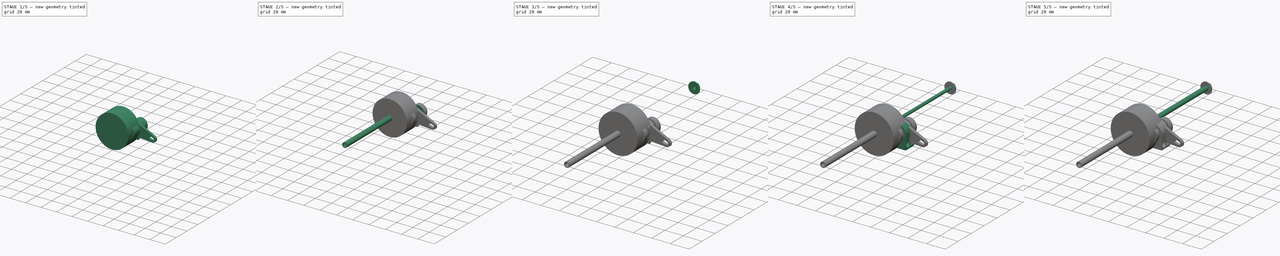
[diagram: build sequence overview — one tinted view per stage of 5, left to right]
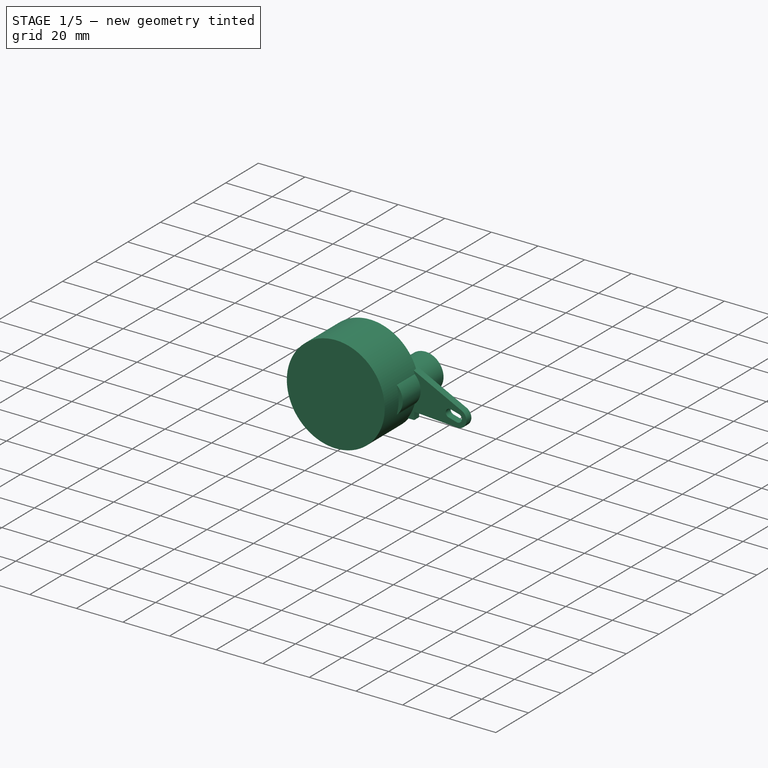
[diagram: stage 1 of 5 — iso view after this stage's code; geometry added in this stage tinted green]
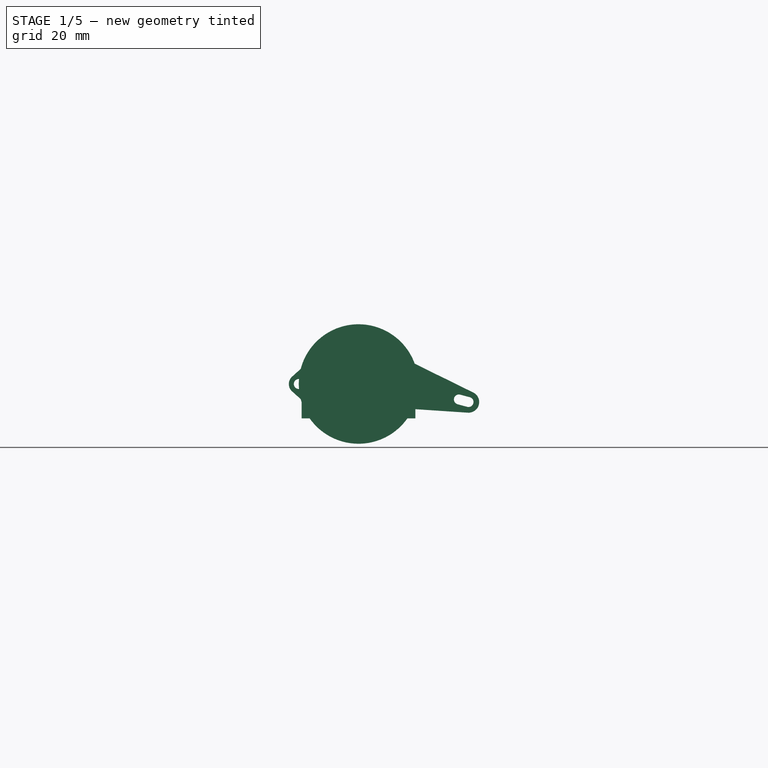
[diagram: stage 1 of 5 — front view after this stage's code; geometry added in this stage tinted green]
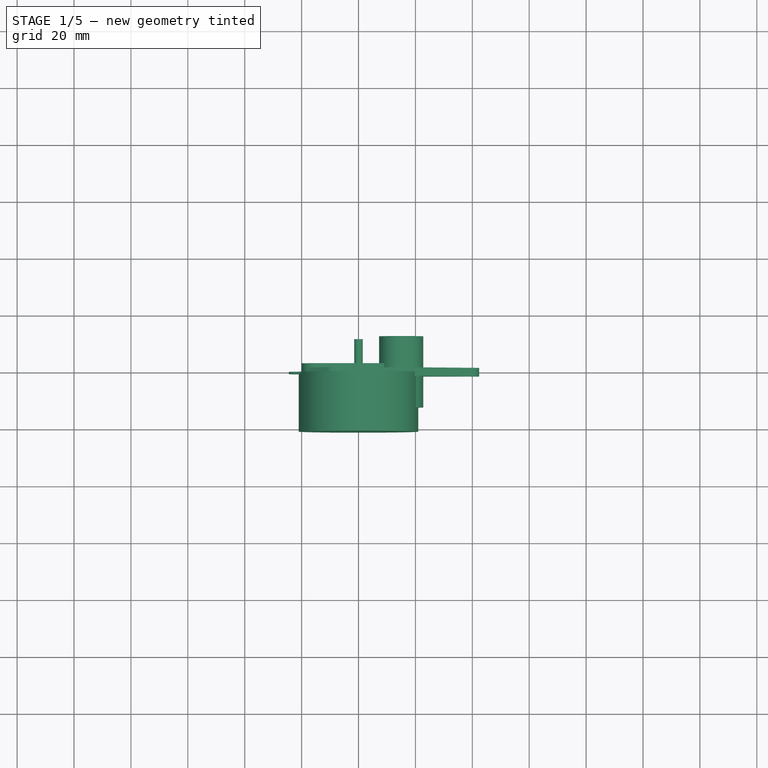
[diagram: stage 1 of 5 — top view after this stage's code; geometry added in this stage tinted green]
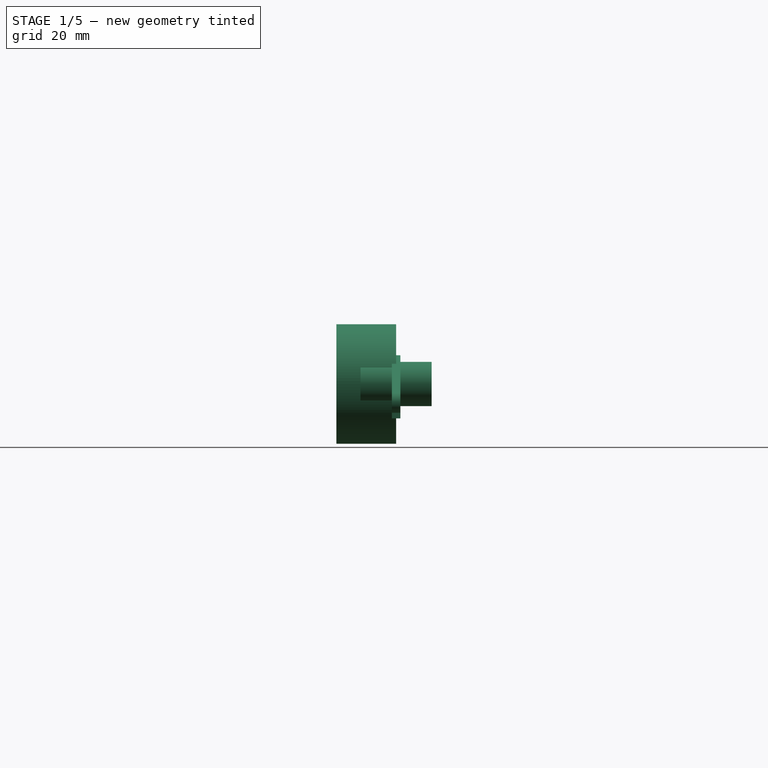
[diagram: stage 1 of 5 — right view after this stage's code; geometry added in this stage tinted green]
FCSTD DOCUMENT  (FreeCAD 0.19R23546 (Git))
Label: EL-axis v2
License: All rights reserved
LicenseURL: http://en.wikipedia.org/wiki/All_rights_reserved
objects: Sketcher::SketchObject×22, PartDesign::Body×22, PartDesign::FeatureBase×13, PartDesign::Pad×10, PartDesign::Pocket×8, App::Part×7, Part::FeaturePython×5, PartDesign::Revolution×3, PartDesign::Mirrored×1, PartDesign::Fillet×1, Part::Part2DObjectPython×1
note: 108 computed .brp shape members not serialized (recipe doc carries the construction recipe); baked Part::Feature solids carry a one-line shape summary decoded from their .brp

FEATURE [PartDesign::Body] Body021
  BaseFeature = -> Nut
  Group = -> [Clone016]
  Origin = -> Origin028
  Placement = pos=(15,61.25,0) rot=(0,0,1;0rad)
  Tip = -> Clone016
FEATURE [Sketcher::SketchObject] Sketch012
  MapMode = 5
  Placement = pos=(0,0,0) rot=(1,0,0;1.5708rad)
  Support = -> [XZ_Plane029]
  expr: Constraints[15] = <<params>>.Constraints.entraxe
  sketch-geometry (27):
    g0: Circle CenterX=-15 CenterY=-2e-16 CenterZ=0 NormalX=0 NormalY=0 NormalZ=1 AngleXU=0 Radius=3.05
    g1: ArcOfCircle CenterX=0 CenterY=0 CenterZ=0 NormalX=0 NormalY=0 NormalZ=1 AngleXU=0 Radius=3 StartAngle=3.22502 EndAngle=6.19976
    g2: Circle CenterX=15 CenterY=2e-16 CenterZ=0 NormalX=0 NormalY=0 NormalZ=1 AngleXU=0 Radius=7.7735
    g3: ArcOfCircle CenterX=-15 CenterY=-2e-16 CenterZ=0 NormalX=0 NormalY=0 NormalZ=1 AngleXU=0 Radius=5 StartAngle=1.5708 EndAngle=4.71239
    g4: ArcOfCircle CenterX=15 CenterY=2e-16 CenterZ=0 NormalX=0 NormalY=0 NormalZ=1 AngleXU=0 Radius=7.7735 StartAngle=3.84028 EndAngle=8.72609
    g5: LineSegment StartX=-15 StartY=5 StartZ=0 EndX=9.04791 EndY=5 EndZ=0
    g6: LineSegment StartX=-15 StartY=-5 StartZ=0 EndX=9.04791 EndY=-5 EndZ=0
    g7: LineSegment StartX=17.8868 StartY=-5 StartZ=0 EndX=20.7735 EndY=0 EndZ=0
    g8: LineSegment StartX=20.7735 StartY=0 StartZ=0 EndX=17.8868 EndY=5 EndZ=0
    g9: LineSegment StartX=17.8868 StartY=5 StartZ=0 EndX=12.1132 EndY=5 EndZ=0
    g10: LineSegment StartX=12.1132 StartY=5 StartZ=0 EndX=9.2265 EndY=0 EndZ=0
    g11: LineSegment StartX=9.2265 StartY=0 StartZ=0 EndX=12.1132 EndY=-5 EndZ=0
    g12: LineSegment StartX=12.1132 StartY=-5 StartZ=0 EndX=17.8868 EndY=-5 EndZ=0
    g13: Circle CenterX=15 CenterY=2e-16 CenterZ=0 NormalX=0 NormalY=0 NormalZ=1 AngleXU=0 Radius=5.7735
    g14: LineSegment StartX=15 StartY=5.7735 StartZ=0 EndX=15 EndY=7.7735 EndZ=0
    g15: ArcOfCircle CenterX=-16.5 CenterY=-2e-16 CenterZ=0 NormalX=0 NormalY=0 NormalZ=1 AngleXU=0 Radius=3.05 StartAngle=1.5708 EndAngle=4.71239
    g16: ArcOfCircle CenterX=-13.5 CenterY=-2e-16 CenterZ=0 NormalX=0 NormalY=0 NormalZ=1 AngleXU=0 Radius=3.05 StartAngle=4.71239 EndAngle=7.85398
    g17: LineSegment StartX=-16.5 StartY=-3.05 StartZ=0 EndX=-13.5 EndY=-3.05 EndZ=0
    g18: LineSegment StartX=-16.5 StartY=3.05 StartZ=0 EndX=-13.5 EndY=3.05 EndZ=0
    g19: Circle CenterX=15 CenterY=2e-16 CenterZ=0 NormalX=0 NormalY=0 NormalZ=1 AngleXU=0 Radius=3
    g20: ArcOfCircle CenterX=-7.5 CenterY=-6.47e-14 CenterZ=0 NormalX=0 NormalY=0 NormalZ=1 AngleXU=0 Radius=0.25 StartAngle=1.5708 EndAngle=4.71239
    g21: ArcOfCircle CenterX=7.5 CenterY=6.47e-14 CenterZ=0 NormalX=0 NormalY=0 NormalZ=1 AngleXU=0 Radius=0.25 StartAngle=4.71239 EndAngle=7.85398
    g22: LineSegment StartX=-7.5 StartY=-0.25 StartZ=0 EndX=-2.98957 EndY=-0.25 EndZ=0
    g23: LineSegment StartX=-7.5 StartY=0.25 StartZ=0 EndX=-2.98957 EndY=0.25 EndZ=0
    g24: ArcOfCircle CenterX=0 CenterY=0 CenterZ=0 NormalX=0 NormalY=0 NormalZ=1 AngleXU=0 Radius=3 StartAngle=0.0834301 EndAngle=3.05816
    g25: LineSegment StartX=2.98957 StartY=0.25 StartZ=0 EndX=7.5 EndY=0.25 EndZ=0
    g26: LineSegment StartX=2.98957 StartY=-0.25 StartZ=0 EndX=7.5 EndY=-0.25 EndZ=0
  constraints (66):
    c: Diameter(g0) = 6.1
    c: Coincident(g1,g-1)
    c: Diameter(g1) = 6
    c: Coincident(g3,g0)
    c: PointOnObject(g4,g2)
    c: Coincident(g5,g3)
    c: Horizontal(g5)
    c: Coincident(g6,g3)
    c: Coincident(g6,g4)
    c: Horizontal(g6)
    c: Coincident(g4,g5)
    c: Symmetric(g3,g3,g-1)
    c: DistanceY(g3,g3) = 10
    c: Vertical(g0,g3)
    c: Symmetric(g0,g2,g1)
    c: DistanceX(g0,g2) = 30
    c: Coincident(g4,g2)
    c: Coincident(g7,g8)
    c: Coincident(g8,g9)
    c: Coincident(g9,g10)
    c: Coincident(g10,g11)
    c: Coincident(g11,g12)
    c: Coincident(g12,g7)
    c: Equal(g7, g8-g12) x5
    c: PointOnObject(g7,g13)
    c: PointOnObject(g8,g13)
    c: PointOnObject(g9,g13)
    c: PointOnObject(g10,g13)
    c: PointOnObject(g11,g13)
    c: PointOnObject(g12,g13)
    c: Coincident(g13,g4)
    c: Horizontal(g12)
    c: DistanceY(g7,g8) = 10
    c: PointOnObject(g14,g13)
    c: PointOnObject(g14,g4)
    c: Vertical(g14)
    c: PointOnObject(g4,g14)
    c: DistanceY(g14,g14) = 2
    c: Tangent(g15,g18)
    c: Tangent(g15,g17)
    c: Tangent(g17,g16)
    c: Tangent(g18,g16)
    c: Horizontal(g17)
    c: Equal(g15,g16)
    c: Equal(g16,g0)
    c: Symmetric(g15,g16,g3)
    c: DistanceX(g15,g16) = 3
    c: Coincident(g19,g4)
    c: Diameter(g19) = 6
    c: Tangent(g20,g23)
    c: Tangent(g20,g22)
    c: Coincident(g26,g21)
    c: Coincident(g25,g21)
    c: Horizontal(g22)
    c: Equal(g20,g21)
    c: Diameter(g21) = 0.5
    c: Symmetric(g20,g21,g1)
    c: DistanceX(g20,g21) = 15
    c: Equal(g1,g24)
    c: Coincident(g1,g24)
    c: Coincident(g23,g24)
    c: Coincident(g25,g24)
    c: Tangent(g23,g25)
    c: Coincident(g22,g1)
    c: Coincident(g26,g1)
    c: Tangent(g22,g26)
FEATURE [PartDesign::Pad] Pad005
  Direction = (1,1,1)
  Length = 6
  Length2 = 100
  Midplane = true
  Placement = pos=(0,0,0) rot=(1,0,0;1.5708rad)
  Profile = -> Sketch012
  Type = 0
FEATURE [Sketcher::SketchObject] Sketch013
  ExternalGeometry = -> [Pad005,Sketch012]
  MapMode = 5
  Placement = pos=(0,0,0) rot=(1,0,0;1.5708rad)
  Support = -> [XZ_Plane029]
  sketch-geometry (2):
    g0: Circle CenterX=15 CenterY=0 CenterZ=0 NormalX=0 NormalY=0 NormalZ=1 AngleXU=0 Radius=7.7735
    g1: Circle CenterX=15 CenterY=0 CenterZ=0 NormalX=0 NormalY=0 NormalZ=1 AngleXU=0 Radius=3
  constraints (4):
    c: Coincident(g0,g-3)
    c: Equal(g0,g-3)
    c: Coincident(g1,g0)
    c: Equal(g-4,g1)
FEATURE [PartDesign::Pad] Pad006
  BaseFeature = -> Pad005
  Direction = (1,1,1)
  Length = 25
  Length2 = 100
  Midplane = true
  Placement = pos=(0,0,0) rot=(1,0,0;1.5708rad)
  Profile = -> Sketch013
  Type = 0
FEATURE [Sketcher::SketchObject] Sketch014
  AttachmentOffset = pos=(0,0,11.5) rot=(0,0,1;0rad)
  ExternalGeometry = -> [Sketch013]
  MapMode = 5
  Placement = pos=(0,-11.5,-2.6e-15) rot=(1,0,0;1.5708rad)
  Support = -> [XZ_Plane029]
  sketch-geometry (7):
    g0: LineSegment StartX=17.8868 StartY=-5 StartZ=0 EndX=20.7735 EndY=-9e-16 EndZ=0
    g1: LineSegment StartX=20.7735 StartY=-9e-16 StartZ=0 EndX=17.8868 EndY=5 EndZ=0
    g2: LineSegment StartX=17.8868 StartY=5 StartZ=0 EndX=12.1132 EndY=5 EndZ=0
    g3: LineSegment StartX=12.1132 StartY=5 StartZ=0 EndX=9.2265 EndY=0 EndZ=0
    g4: LineSegment StartX=9.2265 StartY=0 StartZ=0 EndX=12.1132 EndY=-5 EndZ=0
    g5: LineSegment StartX=12.1132 StartY=-5 StartZ=0 EndX=17.8868 EndY=-5 EndZ=0
    g6: Circle CenterX=15 CenterY=0 CenterZ=0 NormalX=0 NormalY=0 NormalZ=1 AngleXU=0 Radius=5.7735
  constraints (16):
    c: Coincident(g0,g1)
    c: Coincident(g1,g2)
    c: Coincident(g2,g3)
    c: Coincident(g3,g4)
    c: Coincident(g4,g5)
    c: Coincident(g5,g0)
    c: Equal(g0, g1-g5) x5
    c: PointOnObject(g0,g6)
    c: PointOnObject(g1,g6)
    c: PointOnObject(g2,g6)
    c: PointOnObject(g3,g6)
    c: PointOnObject(g4,g6)
    c: PointOnObject(g5,g6)
    c: Coincident(g6,g-3)
    c: DistanceY(g0,g1) = 10
    c: Horizontal(g2)
FEATURE [PartDesign::Pocket] Pocket005
  BaseFeature = -> Pad006
  Length = 5
  Length2 = 100
  Midplane = true
  Placement = pos=(0,0,0) rot=(1,0,0;1.5708rad)
  Profile = -> Sketch014
  Type = 0
FEATURE [PartDesign::Body] Body022
  Group = -> [Sketch012,Pad005,Sketch013,Pad006,Sketch014,Pocket005,Sketch015,Pocket006,Sketch016,Pocket007,Fillet]
  Origin = -> Origin029
  Placement = pos=(0,47.5,0) rot=(0,0,1;0rad)
  Tip = -> Fillet
FEATURE [App::Part] Part005  label="carriage_v2"
  Group = -> [Body019,Body020,Body021,Body022]
  Origin = -> Origin025
FEATURE [Sketcher::SketchObject] Sketch017
  MapMode = 5
  Support = -> [XY_Plane030]
  expr: Constraints[18] = 2 / 2
  expr: Constraints[19] = 10 / 2
  expr: Constraints[20] = 35 / 2
  sketch-geometry (8):
    g0: LineSegment StartX=0 StartY=7 StartZ=0 EndX=0 EndY=-15 EndZ=0
    g1: LineSegment StartX=0 StartY=7 StartZ=0 EndX=1 EndY=7 EndZ=0
    g2: LineSegment StartX=1 StartY=7 StartZ=0 EndX=1 EndY=1.5 EndZ=0
    g3: LineSegment StartX=1 StartY=1.5 StartZ=0 EndX=5 EndY=1.5 EndZ=0
    g4: LineSegment StartX=5 StartY=1.5 StartZ=0 EndX=5 EndY=0 EndZ=0
    g5: LineSegment StartX=5 StartY=0 StartZ=0 EndX=17.5 EndY=0 EndZ=0
    g6: LineSegment StartX=17.5 StartY=0 StartZ=0 EndX=17.5 EndY=-15 EndZ=0
    g7: LineSegment StartX=17.5 StartY=-15 StartZ=0 EndX=0 EndY=-15 EndZ=0
  constraints (24):
    c: PointOnObject(g0,g-2)
    c: PointOnObject(g0,g-2)
    c: Coincident(g1,g0)
    c: Horizontal(g1)
    c: Coincident(g2,g1)
    c: Vertical(g2)
    c: Coincident(g3,g2)
    c: Horizontal(g3)
    c: Coincident(g4,g3)
    c: Vertical(g4)
    c: PointOnObject(g4,g-1)
    c: Coincident(g5,g4)
    c: PointOnObject(g5,g-1)
    c: Coincident(g6,g5)
    c: Vertical(g6)
    c: Coincident(g7,g6)
    c: Horizontal(g7)
    c: Coincident(g0,g7)
    c: DistanceX(g1,g1) = 1
    c: DistanceX(g-1,g3) = 5
    c: DistanceX(g-1,g5) = 17.5
    c: DistanceY(g0,g-1) = 15
    c: DistanceY(g-1,g2) = 1.5
    c: DistanceY(g-1,g0) = 7
FEATURE [PartDesign::Revolution] Revolution001
  Angle = 360
  Axis = (0,1,0)
  Base = (0,0,0)
  Profile = -> Sketch017
  ReferenceAxis = -> Sketch017 [V_Axis]
FEATURE [Sketcher::SketchObject] Sketch018
  ExternalGeometry = -> [Revolution001]
  MapMode = 5
  Placement = pos=(0,0,0) rot=(0,0.707107,0.707107;3.14159rad)
  Support = -> [Revolution001]
  sketch-geometry (12):
    g0: Circle CenterX=-21 CenterY=0 CenterZ=0 NormalX=0 NormalY=0 NormalZ=1 AngleXU=0 Radius=1.75
    g1: Circle CenterX=21 CenterY=0 CenterZ=0 NormalX=0 NormalY=0 NormalZ=1 AngleXU=0 Radius=1.75
    g2: ArcOfCircle CenterX=0 CenterY=0 CenterZ=0 NormalX=0 NormalY=0 NormalZ=1 AngleXU=0 Radius=17.5 StartAngle=0.841069 EndAngle=2.30052
    g3: ArcOfCircle CenterX=0 CenterY=0 CenterZ=0 NormalX=0 NormalY=0 NormalZ=1 AngleXU=0 Radius=17.5 StartAngle=3.98266 EndAngle=5.44212
    g4: ArcOfCircle CenterX=-21 CenterY=0 CenterZ=0 NormalX=0 NormalY=0 NormalZ=1 AngleXU=0 Radius=3.5 StartAngle=2.30052 EndAngle=3.98266
    g5: ArcOfCircle CenterX=21 CenterY=0 CenterZ=0 NormalX=0 NormalY=0 NormalZ=1 AngleXU=0 Radius=3.5 StartAngle=5.44212 EndAngle=7.12425
    g6: LineSegment StartX=-23.3333 StartY=2.60875 StartZ=0 EndX=-11.6667 EndY=13.0437 EndZ=0
    g7: LineSegment StartX=11.6667 StartY=13.0437 StartZ=0 EndX=23.3333 EndY=2.60875 EndZ=0
    g8: LineSegment StartX=23.3333 StartY=-2.60875 StartZ=0 EndX=11.6667 EndY=-13.0437 EndZ=0
    g9: LineSegment StartX=-11.6667 StartY=-13.0437 StartZ=0 EndX=-23.3333 EndY=-2.60875 EndZ=0
    g10: GeomPoint X=-24.5 Y=0 Z=0
    g11: GeomPoint X=24.5 Y=0 Z=0
  constraints (25):
    c: PointOnObject(g0,g-1)
    c: Equal(g0,g1)
    c: Diameter(g1) = 3.5
    c: Symmetric(g0,g1,g-1)
    c: DistanceX(g0,g1) = 42
    c: Coincident(g2,g-1)
    c: Coincident(g3,g2)
    c: Coincident(g4,g0)
    c: Coincident(g5,g1)
    c: Equal(g2,g-3)
    c: Equal(g-3,g3)
    c: Tangent(g6,g2) = 1.5708
    c: Tangent(g7,g2) = 1.5708
    c: Tangent(g7,g5) = 1.5708
    c: Tangent(g8,g5) = 1.5708
    c: Tangent(g8,g3) = 1.5708
    c: Tangent(g9,g3) = 1.5708
    c: Tangent(g9,g4) = 1.5708
    c: Equal(g4,g5)
    c: PointOnObject(g10,g4)
    c: PointOnObject(g11,g5)
    c: Horizontal(g10,g0)
    c: Horizontal(g1,g11)
    c: DistanceX(g10,g11) = 49
    c: Tangent(g6,g4) = 1.5708
FEATURE [PartDesign::Pad] Pad007
  BaseFeature = -> Revolution001
  Direction = (1,1,1)
  Length = 0.8
  Length2 = 100
  Profile = -> Sketch018
  Reversed = true
  Type = 0
FEATURE [PartDesign::Body] Body023  label="motor_A"
  Group = -> [Sketch017,Revolution001,Sketch018,Pad007]
  Origin = -> Origin030
  Placement = pos=(15,-13,0) rot=(0,0,1;0rad)
  Tip = -> Pad007
FEATURE [Sketcher::SketchObject] Sketch020
  MapMode = 5
  Support = -> [XY_Plane030]
  expr: Constraints[20] = 42 / 2
  expr: Constraints[19] = 10 / 2
  expr: Constraints[18] = 3 / 2
  sketch-geometry (8):
    g0: LineSegment StartX=0 StartY=11.5 StartZ=0 EndX=0 EndY=-21 EndZ=0
    g1: LineSegment StartX=0 StartY=11.5 StartZ=0 EndX=1.5 EndY=11.5 EndZ=0
    g2: LineSegment StartX=1.5 StartY=11.5 StartZ=0 EndX=1.5 EndY=1.5 EndZ=0
    g3: LineSegment StartX=1.5 StartY=1.5 StartZ=0 EndX=5 EndY=1.5 EndZ=0
    g4: LineSegment StartX=5 StartY=1.5 StartZ=0 EndX=5 EndY=0 EndZ=0
    g5: LineSegment StartX=5 StartY=0 StartZ=0 EndX=21 EndY=0 EndZ=0
    g6: LineSegment StartX=21 StartY=0 StartZ=0 EndX=21 EndY=-21 EndZ=0
    g7: LineSegment StartX=21 StartY=-21 StartZ=0 EndX=0 EndY=-21 EndZ=0
  constraints (24):
    c: PointOnObject(g0,g-2)
    c: PointOnObject(g0,g-2)
    c: Coincident(g1,g0)
    c: Horizontal(g1)
    c: Coincident(g2,g1)
    c: Vertical(g2)
    c: Coincident(g3,g2)
    c: Horizontal(g3)
    c: Coincident(g4,g3)
    c: Vertical(g4)
    c: PointOnObject(g4,g-1)
    c: Coincident(g5,g4)
    c: PointOnObject(g5,g-1)
    c: Coincident(g6,g5)
    c: Vertical(g6)
    c: Coincident(g7,g6)
    c: Horizontal(g7)
    c: Coincident(g0,g7)
    c: DistanceX(g1,g1) = 1.5
    c: DistanceX(g-1,g3) = 5
    c: DistanceX(g-1,g5) = 21
    c: DistanceY(g0,g-1) = 21
    c: DistanceY(g-1,g2) = 1.5
    c: DistanceY(g-1,g0) = 11.5
FEATURE [PartDesign::Revolution] Revolution002
  Angle = 360
  Axis = (0,1,0)
  Base = (0,0,0)
  Profile = -> Sketch020
  ReferenceAxis = -> Sketch020 [V_Axis]
FEATURE [Sketcher::SketchObject] Sketch019
  ExternalGeometry = -> [Revolution002]
  MapMode = 5
  Placement = pos=(0,0,0) rot=(0,0.707107,0.707107;3.14159rad)
  Support = -> [Revolution002]
  sketch-geometry (12):
    g0: Circle CenterX=-24.5 CenterY=0 CenterZ=0 NormalX=0 NormalY=0 NormalZ=1 AngleXU=0 Radius=1.75
    g1: Circle CenterX=24.5 CenterY=0 CenterZ=0 NormalX=0 NormalY=0 NormalZ=1 AngleXU=0 Radius=1.75
    g2: ArcOfCircle CenterX=0 CenterY=0 CenterZ=0 NormalX=0 NormalY=0 NormalZ=1 AngleXU=0 Radius=21 StartAngle=0.803936 EndAngle=2.33766
    g3: ArcOfCircle CenterX=0 CenterY=0 CenterZ=0 NormalX=0 NormalY=0 NormalZ=1 AngleXU=0 Radius=21 StartAngle=3.94553 EndAngle=5.47925
    g4: ArcOfCircle CenterX=-24.5 CenterY=0 CenterZ=0 NormalX=0 NormalY=0 NormalZ=1 AngleXU=0 Radius=4 StartAngle=2.33766 EndAngle=3.94553
    g5: ArcOfCircle CenterX=24.5 CenterY=0 CenterZ=0 NormalX=0 NormalY=0 NormalZ=1 AngleXU=0 Radius=4 StartAngle=5.47925 EndAngle=7.08712
    g6: LineSegment StartX=-27.2755 StartY=2.88037 StartZ=0 EndX=-14.5714 EndY=15.122 EndZ=0
    g7: LineSegment StartX=14.5714 StartY=15.122 StartZ=0 EndX=27.2755 EndY=2.88037 EndZ=0
    g8: LineSegment StartX=27.2755 StartY=-2.88037 StartZ=0 EndX=14.5714 EndY=-15.122 EndZ=0
    g9: LineSegment StartX=-14.5714 StartY=-15.122 StartZ=0 EndX=-27.2755 EndY=-2.88037 EndZ=0
    g10: GeomPoint X=-28.5 Y=0 Z=0
    g11: GeomPoint X=28.5 Y=0 Z=0
  constraints (25):
    c: PointOnObject(g0,g-1)
    c: Equal(g0,g1)
    c: Diameter(g1) = 3.5
    c: Symmetric(g0,g1,g-1)
    c: DistanceX(g0,g1) = 49
    c: Coincident(g2,g-1)
    c: Coincident(g3,g2)
    c: Coincident(g4,g0)
    c: Coincident(g5,g1)
    c: Equal(g2,g-3)
    c: Equal(g-3,g3)
    c: Tangent(g6,g2) = 1.5708
    c: Tangent(g7,g2) = 1.5708
    c: Tangent(g7,g5) = 1.5708
    c: Tangent(g8,g5) = 1.5708
    c: Tangent(g8,g3) = 1.5708
    c: Tangent(g9,g3) = 1.5708
    c: Tangent(g9,g4) = 1.5708
    c: Equal(g4,g5)
    c: PointOnObject(g10,g4)
    c: PointOnObject(g11,g5)
    c: Horizontal(g10,g0)
    c: Horizontal(g1,g11)
    c: DistanceX(g10,g11) = 57
    c: Tangent(g6,g4) = 1.5708
FEATURE [PartDesign::Body] Body024  label="motor_B"
  Group = -> [Sketch020,Revolution002,Sketch019]
  Placement = pos=(15,-23,0) rot=(0,1,0;0.261799rad)
  Tip = -> Revolution002
FEATURE [Part::Part2DObjectPython] InvoluteGear001  # Draft 2D object (typed FeaturePython)
  ExternalGear = true
  HighPrecision = true
  Modules = 0.8
  NumberOfTeeth = 14
  Placement = pos=(0,0,0) rot=(1,0,0;1.5708rad)
  PressureAngle = 20
FEATURE [PartDesign::Pad] Pad009
  Direction = (1,1,1)
  Length = 3
  Length2 = 100
  Placement = pos=(0,0,0) rot=(1,0,0;1.5708rad)
  Profile = -> InvoluteGear001
  Type = 0
FEATURE [PartDesign::Body] Body025
  Group = -> [InvoluteGear001,Pad009]
  Origin = -> Origin031
  Placement = pos=(15,-13,0) rot=(0,0,1;0rad)
  Tip = -> Pad009
FEATURE [App::Part] Part003  label="parts"
  Group = -> [Body,Nut,ScrewTap,Body013,Body023,Body024,Body025]
  Origin = -> Origin009
FEATURE [Sketcher::SketchObject] Sketch021
  MapMode = 5
  Placement = pos=(0,0,0) rot=(1,0,0;1.5708rad)
  Support = -> [XZ_Plane033]
  expr: Constraints[3] = <<params>>.Constraints.entraxe
  sketch-geometry (38):
    g0: Circle CenterX=-15 CenterY=0 CenterZ=0 NormalX=0 NormalY=0 NormalZ=1 AngleXU=0 Radius=3
    g1: Circle CenterX=0 CenterY=0 CenterZ=0 NormalX=0 NormalY=0 NormalZ=1 AngleXU=0 Radius=3
    g2: Circle CenterX=15 CenterY=0 CenterZ=0 NormalX=0 NormalY=0 NormalZ=1 AngleXU=0 Radius=6.5
    g3: Circle CenterX=-15 CenterY=0 CenterZ=0 NormalX=0 NormalY=0 NormalZ=1 AngleXU=0 Radius=5
    g4: Circle CenterX=0 CenterY=0 CenterZ=0 NormalX=0 NormalY=0 NormalZ=1 AngleXU=0 Radius=5
    g5: Circle CenterX=15 CenterY=0 CenterZ=0 NormalX=0 NormalY=0 NormalZ=1 AngleXU=0 Radius=8.5
    g6: LineSegment StartX=19.4002 StartY=4.78417 StartZ=0 EndX=20.7541 EndY=6.25622 EndZ=0
    g7: LineSegment StartX=1.71751 StartY=2.45971 StartZ=0 EndX=2.86252 EndY=4.09951 EndZ=0
    g8: LineSegment StartX=-13.5816 StartY=2.64349 StartZ=0 EndX=-12.6359 EndY=4.40582 EndZ=0
    g9: LineSegment StartX=-8.66518 StartY=6.34107 StartZ=0 EndX=38.6652 EndY=-6.34107 EndZ=0
    g10: ArcOfCircle CenterX=38.6652 CenterY=-6.34107 CenterZ=0 NormalX=0 NormalY=0 NormalZ=1 AngleXU=0 Radius=1.75 StartAngle=4.45059 EndAngle=7.59218
    g11: ArcOfCircle CenterX=35.2844 CenterY=-5.4352 CenterZ=0 NormalX=0 NormalY=0 NormalZ=1 AngleXU=0 Radius=1.75 StartAngle=1.309 EndAngle=4.45059
    g12: LineSegment StartX=39.1181 StartY=-4.6507 StartZ=0 EndX=35.7374 EndY=-3.74483 EndZ=0
    g13: LineSegment StartX=38.2122 StartY=-8.03144 StartZ=0 EndX=34.8315 EndY=-7.12557 EndZ=0
    g14: ArcOfCircle CenterX=-8.66518 CenterY=6.34107 CenterZ=0 NormalX=0 NormalY=0 NormalZ=1 AngleXU=0 Radius=1.75 StartAngle=1.309 EndAngle=4.45059
    g15: ArcOfCircle CenterX=-5.28444 CenterY=5.4352 CenterZ=0 NormalX=0 NormalY=0 NormalZ=1 AngleXU=0 Radius=1.75 StartAngle=4.45059 EndAngle=7.59218
    g16: LineSegment StartX=-9.11812 StartY=4.6507 StartZ=0 EndX=-5.73738 EndY=3.74483 EndZ=0
    g17: LineSegment StartX=-8.21225 StartY=8.03144 StartZ=0 EndX=-4.83151 EndY=7.12557 EndZ=0
    g18: Circle CenterX=-8.66518 CenterY=6.34107 CenterZ=0 NormalX=0 NormalY=0 NormalZ=1 AngleXU=0 Radius=3.75
    g19: Circle CenterX=38.6652 CenterY=-6.34107 CenterZ=0 NormalX=0 NormalY=0 NormalZ=1 AngleXU=0 Radius=3.75
    g20: LineSegment StartX=-10.9226 StartY=9.33549 StartZ=0 EndX=-18.0099 EndY=3.99256 EndZ=0
    g21: LineSegment StartX=40.3196 StartY=-2.97575 StartZ=0 EndX=18.75 EndY=7.62806 EndZ=0
    g22: LineSegment StartX=19.999 StartY=-8.8528 StartZ=0 EndX=38.4153 EndY=-10.0827 EndZ=0
    g23: LineSegment StartX=15.5664 StartY=8.48111 StartZ=0 EndX=-8.41529 EndY=10.0827 EndZ=0
    g24: ArcOfCircle CenterX=-15 CenterY=0 CenterZ=0 NormalX=0 NormalY=0 NormalZ=1 AngleXU=0 Radius=5 StartAngle=2.21677 EndAngle=3.16109
    g25: ArcOfCircle CenterX=-8.66518 CenterY=6.34107 CenterZ=0 NormalX=0 NormalY=0 NormalZ=1 AngleXU=0 Radius=3.75 StartAngle=1.50411 EndAngle=2.21677
    g26: ArcOfCircle CenterX=15 CenterY=0 CenterZ=0 NormalX=0 NormalY=0 NormalZ=1 AngleXU=0 Radius=8.5 StartAngle=1.11388 EndAngle=1.50411
    g27: ArcOfCircle CenterX=38.6652 CenterY=-6.34107 CenterZ=0 NormalX=0 NormalY=0 NormalZ=1 AngleXU=0 Radius=3.75 StartAngle=4.6457 EndAngle=7.39707
    g28: LineSegment StartX=-35.5915 StartY=-12.0911 StartZ=0 EndX=47.5026 EndY=-12.0911 EndZ=0
    g29: LineSegment StartX=47.5026 StartY=-12.0911 StartZ=0 EndX=47.5026 EndY=-18.0911 EndZ=0
    g30: LineSegment StartX=47.5026 StartY=-18.0911 StartZ=0 EndX=-35.5915 EndY=-18.0911 EndZ=0
    g31: LineSegment StartX=-35.5915 StartY=-18.0911 StartZ=0 EndX=-35.5915 EndY=-12.0911 EndZ=0
    g32: LineSegment StartX=-10.0873 StartY=5.32128 StartZ=0 EndX=-11.7127 EndY=4.1558 EndZ=0
    g33: LineSegment StartX=39.8844 StartY=-7.59644 StartZ=0 EndX=41.2778 EndY=-9.03116 EndZ=0
    g34: LineSegment StartX=38.6652 StartY=-10.0911 StartZ=0 EndX=38.6652 EndY=-12.0911 EndZ=0
    g35: LineSegment StartX=-19.999 StartY=-12.0911 StartZ=0 EndX=19.999 EndY=-12.0911 EndZ=0
    g36: LineSegment StartX=-19.999 StartY=-0.097503 StartZ=0 EndX=-19.999 EndY=-12.0911 EndZ=0
    g37: LineSegment StartX=19.999 StartY=-12.0911 StartZ=0 EndX=19.999 EndY=-8.8528 EndZ=0
  constraints (94):
    c: PointOnObject(g0,g-1)
    c: Coincident(g1,g-1)
    c: Symmetric(g0,g2,g1)
    c: DistanceX(g0,g2) = 30
    c: Equal(g0,g1)
    c: Diameter(g1) = 6
    c: Diameter(g2) = 13
    c: Coincident(g3,g0)
    c: Coincident(g4,g1)
    c: Coincident(g5,g2)
    c: Equal(g3,g4)
    c: PointOnObject(g6,g2)
    c: PointOnObject(g6,g5)
    c: PointOnObject(g2,g6)
    c: Distance(g6) = 2
    c: PointOnObject(g7,g1)
    c: PointOnObject(g7,g4)
    c: PointOnObject(g8,g0)
    c: PointOnObject(g8,g3)
    c: PointOnObject(g0,g8)
    c: PointOnObject(g1,g7)
    c: Equal(g7,g6)
    c: Symmetric(g9,g9,g2)
    c: Distance(g9) = 49
    c: Angle(g9) = -0.261799
    c: Tangent(g10,g13)
    c: Tangent(g10,g12)
    c: Tangent(g12,g11)
    c: Tangent(g13,g11)
    c: Equal(g10,g11)
    c: Coincident(g10,g9)
    c: PointOnObject(g11,g9)
    c: Tangent(g14,g17)
    c: Tangent(g14,g16)
    c: Tangent(g16,g15)
    c: Tangent(g17,g15)
    c: Equal(g14,g15)
    c: Coincident(g14,g9)
    c: PointOnObject(g15,g9)
    c: Equal(g14,g11)
    c: Diameter(g10) = 3.5
    c: Distance(g11,g15) = 42
    c: Equal(g16,g13)
    c: Coincident(g18,g14)
    c: Coincident(g19,g10)
    c: Equal(g18,g19)
    c: PointOnObject(g20,g18)
    c: PointOnObject(g20,g3)
    c: Tangent(g20,g3)
    c: PointOnObject(g21,g19)
    c: PointOnObject(g21,g5)
    c: Tangent(g21,g19)
    c: Tangent(g22,g19)
    c: Tangent(g23,g18)
    c: Coincident(g24,g0)
    c: Coincident(g24,g20)
    c: Coincident(g25,g14)
    c: Coincident(g25,g23)
    c: Coincident(g26,g2)
    c: Coincident(g27,g10)
    c: Coincident(g27,g22)
    c: Coincident(g27,g21)
    c: Tangent(g25,g20) = -1.5708
    c: Tangent(g26,g23) = -1.5708
    c: Tangent(g26,g21) = -1.5708
    c: Coincident(g28,g29)
    c: Coincident(g29,g30)
    c: Coincident(g30,g31)
    c: Coincident(g31,g28)
    c: Horizontal(g28)
    c: Horizontal(g30)
    c: Vertical(g29)
    c: Vertical(g31)
    c: DistanceY(g29,g29) = 6
    c: PointOnObject(g32,g14)
    c: PointOnObject(g32,g18)
    c: PointOnObject(g33,g27)
    c: PointOnObject(g14,g32)
    c: PointOnObject(g10,g33)
    c: Equal(g32,g33)
    c: Equal(g33,g8)
    c: PointOnObject(g34,g27)
    c: PointOnObject(g34,g28)
    c: Perpendicular(g28,g34)
    c: PointOnObject(g10,g34)
    c: Equal(g34,g33)
    c: PointOnObject(g35,g28)
    c: Coincident(g36,g35)
    c: Vertical(g36)
    c: Symmetric(g35,g35,g-2)
    c: Coincident(g37,g35)
    c: Vertical(g37)
    c: Coincident(g22,g37)
    c: Coincident(g24,g36)
FEATURE [PartDesign::Pad] Pad010
  Direction = (1,1,1)
  Length = 3
  Length2 = 100
  Midplane = true
  Placement = pos=(0,0,0) rot=(1,0,0;1.5708rad)
  Profile = -> Sketch021
  Type = 0
FEATURE [PartDesign::Body] Body026  label="bd_motor_bracket"
  Group = -> [Sketch021,Pad010]
  Origin = -> Origin033
  Tip = -> Pad010
FEATURE [App::Part] Part006  label="motor_bracket"
  Group = -> [Body026]
  Origin = -> Origin032
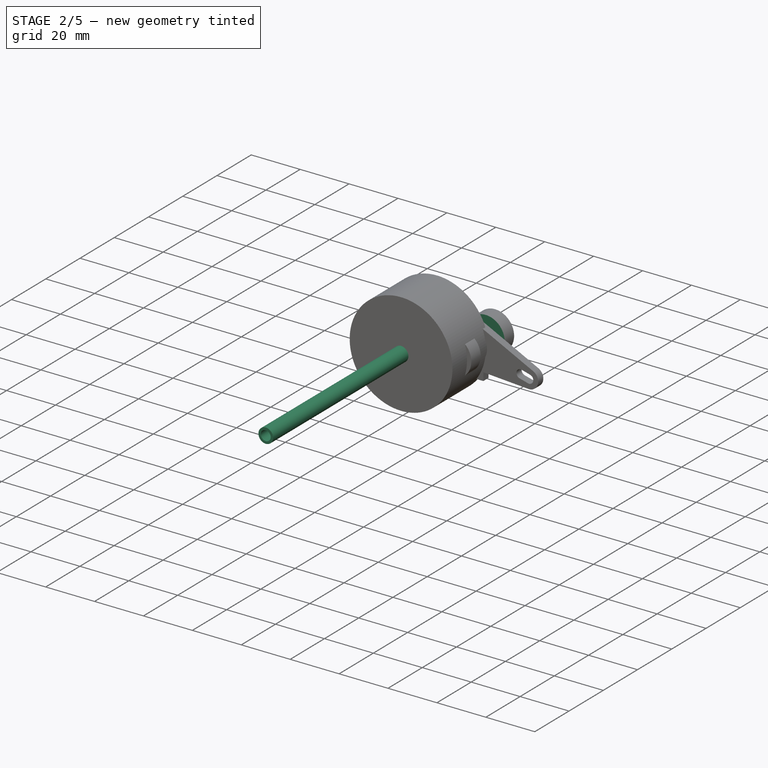
[diagram: stage 2 of 5 — iso view after this stage's code; geometry added in this stage tinted green]
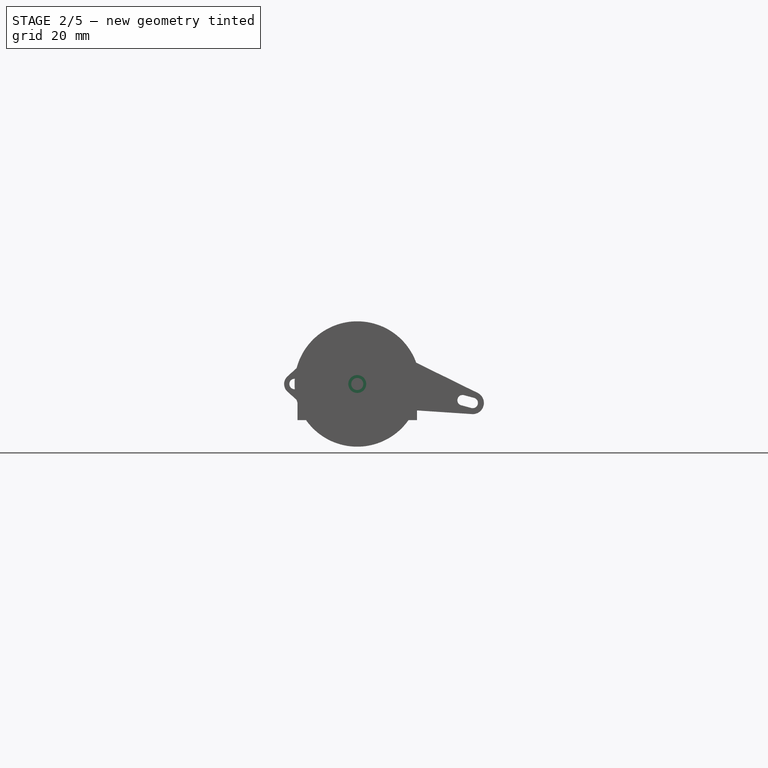
[diagram: stage 2 of 5 — front view after this stage's code; geometry added in this stage tinted green]
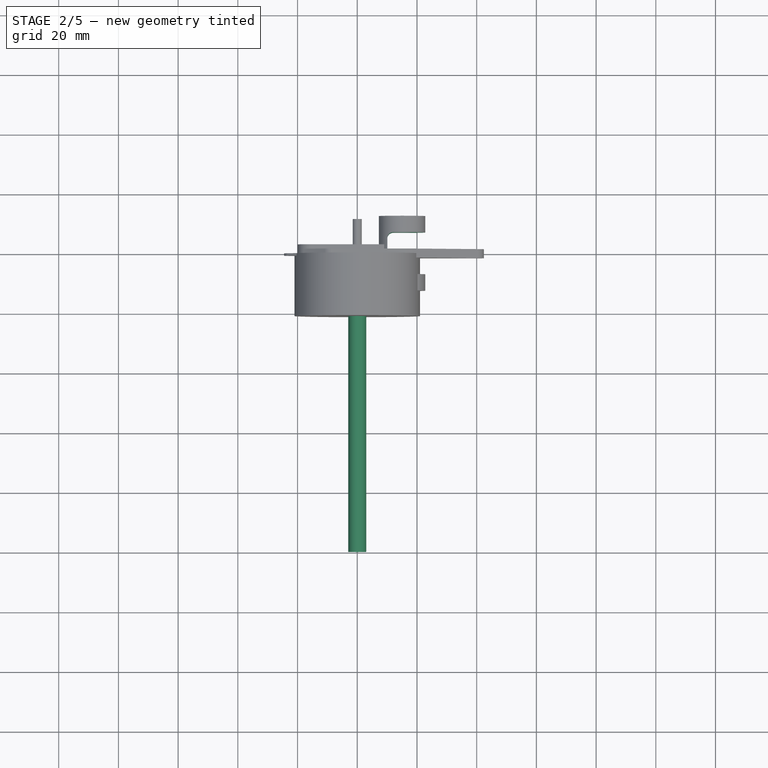
[diagram: stage 2 of 5 — top view after this stage's code; geometry added in this stage tinted green]
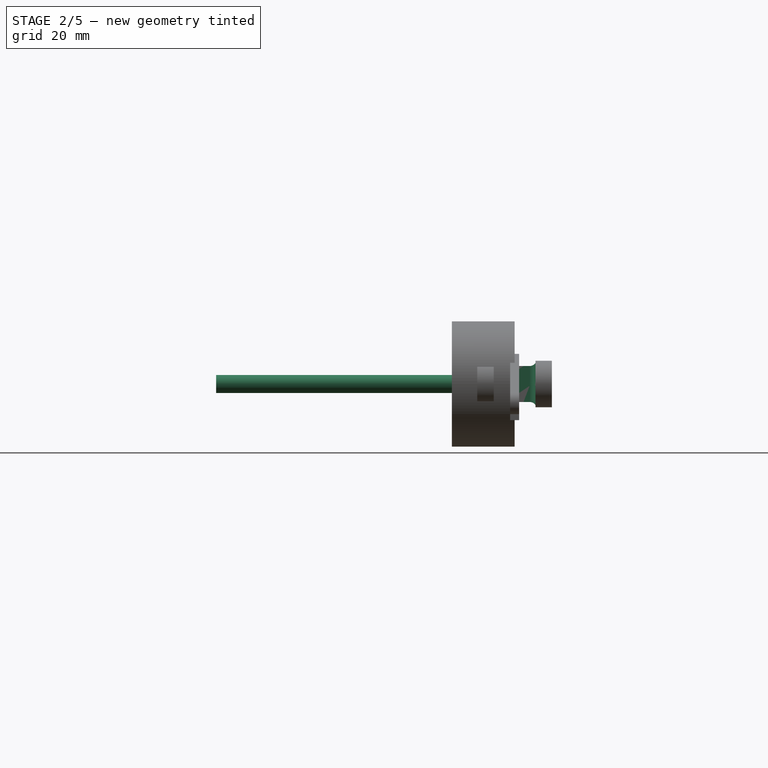
[diagram: stage 2 of 5 — right view after this stage's code; geometry added in this stage tinted green]
FEATURE [Part::FeaturePython] Nut  label="M6-Nut"  # Fasteners workbench fastener (typed FeaturePython)
  Placement = pos=(0,0,0) rot=(1,0,0;1.5708rad)
  diameter = 8
  invert = false
  matchOuter = false
  offset = 0
  thread = false
  type = 4
FEATURE [Sketcher::SketchObject] Sketch006
  MapMode = 5
  Placement = pos=(0,0,0) rot=(1,0,0;1.5708rad)
  Support = -> [XZ_Plane018]
  sketch-geometry (2):
    g0: Circle CenterX=0 CenterY=0 CenterZ=0 NormalX=0 NormalY=0 NormalZ=1 AngleXU=0 Radius=2.025
    g1: Circle CenterX=0 CenterY=0 CenterZ=0 NormalX=0 NormalY=0 NormalZ=1 AngleXU=0 Radius=3
  constraints (4):
    c: Coincident(g0,g-1)
    c: Coincident(g1,g0)
    c: Diameter(g1) = 6
    c: Diameter(g0) = 4.05
FEATURE [PartDesign::Pad] Pad002
  Direction = (1,1,1)
  Length = 100
  Length2 = 100
  Placement = pos=(0,0,0) rot=(1,0,0;1.5708rad)
  Profile = -> Sketch006
  Type = 0
FEATURE [PartDesign::Body] Body017
  Group = -> [Sketch008,Pad003,Sketch009,Pad004,Sketch010,Sketch011,Pocket004,Pocket003,Mirrored]
  Origin = -> Origin023
  Placement = pos=(0,40.5,0) rot=(0,0,1;0rad)
  Tip = -> Pocket004
FEATURE [App::Part] Part004  label="carriage_v1"
  Group = -> [Body014,Body016,Body017,Body018]
  Origin = -> Origin019
FEATURE [PartDesign::FeatureBase] Clone014
  BaseFeature = -> Body013
FEATURE [PartDesign::Body] Body019
  BaseFeature = -> Body013
  Group = -> [Clone014]
  Origin = -> Origin026
  Placement = pos=(0,139,0) rot=(0,0,1;0rad)
  Tip = -> Clone014
FEATURE [PartDesign::FeatureBase] Clone015
  BaseFeature = -> Nut
  Placement = pos=(0,0,0) rot=(1,0,0;1.5708rad)
FEATURE [PartDesign::Body] Body020
  BaseFeature = -> Nut
  Group = -> [Clone015]
  Origin = -> Origin027
  Placement = pos=(15,38.5,0) rot=(0,0,1;0rad)
  Tip = -> Clone015
FEATURE [PartDesign::FeatureBase] Clone016
  BaseFeature = -> Nut
  Placement = pos=(0,0,0) rot=(1,0,0;1.5708rad)
FEATURE [Sketcher::SketchObject] Sketch015
  AttachmentOffset = pos=(0,0,-9) rot=(0,0,1;0rad)
  ExternalGeometry = -> [Sketch013]
  MapMode = 5
  Placement = pos=(0,9,2e-15) rot=(1,0,0;1.5708rad)
  Support = -> [XZ_Plane029]
  sketch-geometry (26):
    g0: LineSegment StartX=17.8868 StartY=-5 StartZ=0 EndX=18.6603 EndY=-3.66025 EndZ=0
    g1: LineSegment StartX=20.7735 StartY=-3.11e-14 StartZ=0 EndX=20 EndY=1.33975 EndZ=0
    g2: LineSegment StartX=17.8868 StartY=5 StartZ=0 EndX=16.3397 EndY=5 EndZ=0
    g3: LineSegment StartX=12.1132 StartY=5 StartZ=0 EndX=11.3397 EndY=3.66025 EndZ=0
    g4: LineSegment StartX=9.2265 StartY=-2.98e-14 StartZ=0 EndX=10 EndY=-1.33975 EndZ=0
    g5: LineSegment StartX=12.1132 StartY=-5 StartZ=0 EndX=13.6603 EndY=-5 EndZ=0
    g6: Circle CenterX=15 CenterY=0 CenterZ=0 NormalX=0 NormalY=0 NormalZ=1 AngleXU=0 Radius=5.7735
    g7: LineSegment StartX=15 StartY=-5.7735 StartZ=0 EndX=16.3397 EndY=-5 EndZ=0
    g8: LineSegment StartX=20 StartY=-2.88675 StartZ=0 EndX=20 EndY=-1.33975 EndZ=0
    g9: LineSegment StartX=20 StartY=2.88675 StartZ=0 EndX=18.6603 EndY=3.66025 EndZ=0
    g10: LineSegment StartX=15 StartY=5.7735 StartZ=0 EndX=13.6603 EndY=5 EndZ=0
    g11: LineSegment StartX=10 StartY=2.88675 StartZ=0 EndX=10 EndY=1.33975 EndZ=0
    g12: LineSegment StartX=10 StartY=-2.88675 StartZ=0 EndX=11.3397 EndY=-3.66025 EndZ=0
    g13: Circle CenterX=15 CenterY=0 CenterZ=0 NormalX=0 NormalY=0 NormalZ=1 AngleXU=0 Radius=5.7735
    g14: LineSegment StartX=11.3397 StartY=3.66025 StartZ=0 EndX=10 EndY=2.88675 EndZ=0
    g15: LineSegment StartX=13.6603 StartY=5 StartZ=0 EndX=12.1132 EndY=5 EndZ=0
    g16: LineSegment StartX=16.3397 StartY=5 StartZ=0 EndX=15 EndY=5.7735 EndZ=0
    g17: LineSegment StartX=18.6603 StartY=3.66025 StartZ=0 EndX=17.8868 EndY=5 EndZ=0
    g18: LineSegment StartX=20 StartY=1.33975 StartZ=0 EndX=20 EndY=2.88675 EndZ=0
    g19: LineSegment StartX=20 StartY=-1.33975 StartZ=0 EndX=20.7735 EndY=-3.11e-14 EndZ=0
    g20: LineSegment StartX=18.6603 StartY=-3.66025 StartZ=0 EndX=20 EndY=-2.88675 EndZ=0
    g21: LineSegment StartX=16.3397 StartY=-5 StartZ=0 EndX=17.8868 EndY=-5 EndZ=0
    g22: LineSegment StartX=13.6603 StartY=-5 StartZ=0 EndX=15 EndY=-5.7735 EndZ=0
    g23: LineSegment StartX=11.3397 StartY=-3.66025 StartZ=0 EndX=12.1132 EndY=-5 EndZ=0
    g24: LineSegment StartX=10 StartY=-1.33975 StartZ=0 EndX=10 EndY=-2.88675 EndZ=0
    g25: LineSegment StartX=10 StartY=1.33975 StartZ=0 EndX=9.2265 EndY=-2.98e-14 EndZ=0
  constraints (54):
    c: Coincident(g19,g1)
    c: Coincident(g17,g2)
    c: Coincident(g15,g3)
    c: Coincident(g25,g4)
    c: Coincident(g23,g5)
    c: Coincident(g21,g0)
    c: PointOnObject(g19,g6)
    c: PointOnObject(g17,g6)
    c: PointOnObject(g15,g6)
    c: PointOnObject(g25,g6)
    c: PointOnObject(g23,g6)
    c: PointOnObject(g21,g6)
    c: Coincident(g6,g-3)
    c: DistanceY(g0,g17) = 10
    c: Horizontal(g2)
    c: Coincident(g20,g8)
    c: Coincident(g18,g9)
    c: Coincident(g16,g10)
    c: Coincident(g14,g11)
    c: Coincident(g24,g12)
    c: Coincident(g22,g7)
    c: PointOnObject(g20,g13)
    c: PointOnObject(g18,g13)
    c: PointOnObject(g16,g13)
    c: PointOnObject(g14,g13)
    c: PointOnObject(g24,g13)
    c: PointOnObject(g22,g13)
    c: Coincident(g13,g6)
    c: PointOnObject(g22,g6)
    c: Vertical(g8)
    c: Tangent(g10,g14)
    c: Coincident(g15,g10)
    c: Tangent(g2,g15)
    c: Coincident(g16,g2)
    c: Tangent(g9,g16)
    c: Coincident(g17,g9)
    c: Tangent(g1,g17)
    c: Coincident(g18,g1)
    c: Tangent(g8,g18)
    c: Coincident(g19,g8)
    c: Tangent(g0,g19)
    c: Coincident(g20,g0)
    c: Tangent(g7,g20)
    c: Coincident(g21,g7)
    c: Tangent(g5,g21)
    c: Coincident(g22,g5)
    c: Tangent(g12,g22)
    c: Coincident(g23,g12)
    c: Tangent(g4,g23)
    c: Coincident(g24,g4)
    c: Tangent(g11,g24)
    c: Coincident(g3,g14)
    c: Coincident(g25,g11)
    c: Tangent(g3,g25)
FEATURE [PartDesign::Pocket] Pocket006
  BaseFeature = -> Pocket005
  Length = 5
  Length2 = 100
  Placement = pos=(0,0,0) rot=(1,0,0;1.5708rad)
  Profile = -> Sketch015
  Type = 0
FEATURE [Sketcher::SketchObject] Sketch016
  ExternalGeometry = -> [Pocket006]
  MapMode = 5
  Support = -> [XY_Plane029]
  sketch-geometry (6):
    g0: Circle CenterX=-5 CenterY=0 CenterZ=0 NormalX=0 NormalY=0 NormalZ=1 AngleXU=0 Radius=1.5
    g1: Circle CenterX=5 CenterY=0 CenterZ=0 NormalX=0 NormalY=0 NormalZ=1 AngleXU=0 Radius=1.5
    g2: LineSegment StartX=10.0758 StartY=7 StartZ=0 EndX=26.8755 EndY=7 EndZ=0
    g3: LineSegment StartX=26.8755 StartY=7 StartZ=0 EndX=26.8755 EndY=-7 EndZ=0
    g4: LineSegment StartX=26.8755 StartY=-7 StartZ=0 EndX=10.0758 EndY=-7 EndZ=0
    g5: LineSegment StartX=10.0758 StartY=-7 StartZ=0 EndX=10.0758 EndY=7 EndZ=0
  constraints (15):
    c: PointOnObject(g0,g-1)
    c: Equal(g0,g1)
    c: Diameter(g1) = 3
    c: Symmetric(g0,g1,g-1)
    c: DistanceX(g0,g1) = 10
    c: Coincident(g2,g3)
    c: Coincident(g3,g4)
    c: Coincident(g4,g5)
    c: Coincident(g5,g2)
    c: Horizontal(g2)
    c: Horizontal(g4)
    c: Vertical(g3)
    c: Vertical(g5)
    c: DistanceY(g2,g-3) = 2
    c: DistanceY(g-4,g3) = 2
FEATURE [PartDesign::Pocket] Pocket007
  BaseFeature = -> Pocket006
  Length = 20
  Length2 = 100
  Midplane = true
  Placement = pos=(0,0,0) rot=(1,0,0;1.5708rad)
  Profile = -> Sketch016
  Type = 0
FEATURE [PartDesign::Fillet] Fillet
  Base = -> Pocket007 [Edge80,Edge79]
  BaseFeature = -> Pocket007
  Placement = pos=(0,0,0) rot=(1,0,0;1.5708rad)
  Radius = 2
  SupportTransform = false
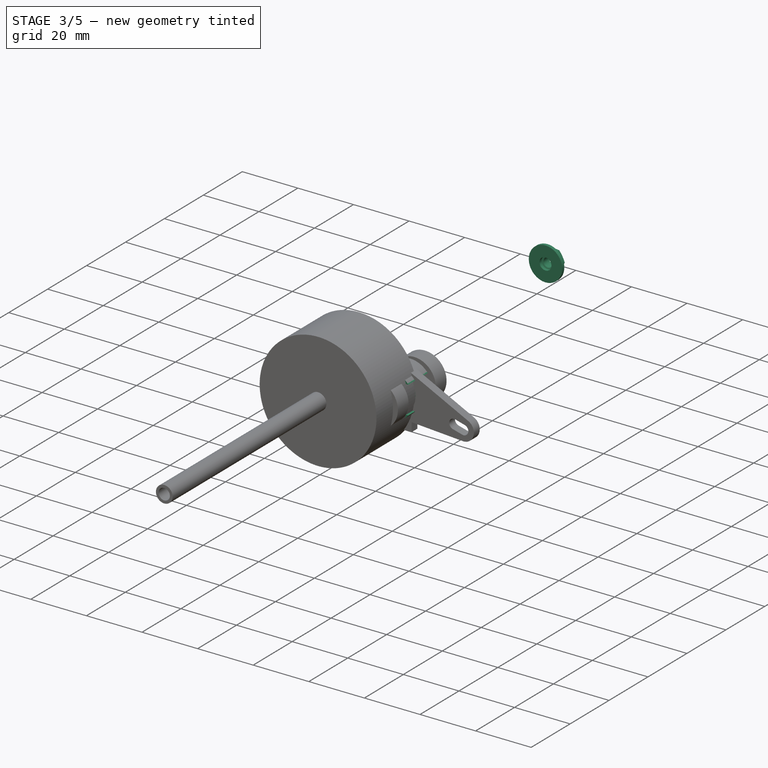
[diagram: stage 3 of 5 — iso view after this stage's code; geometry added in this stage tinted green]
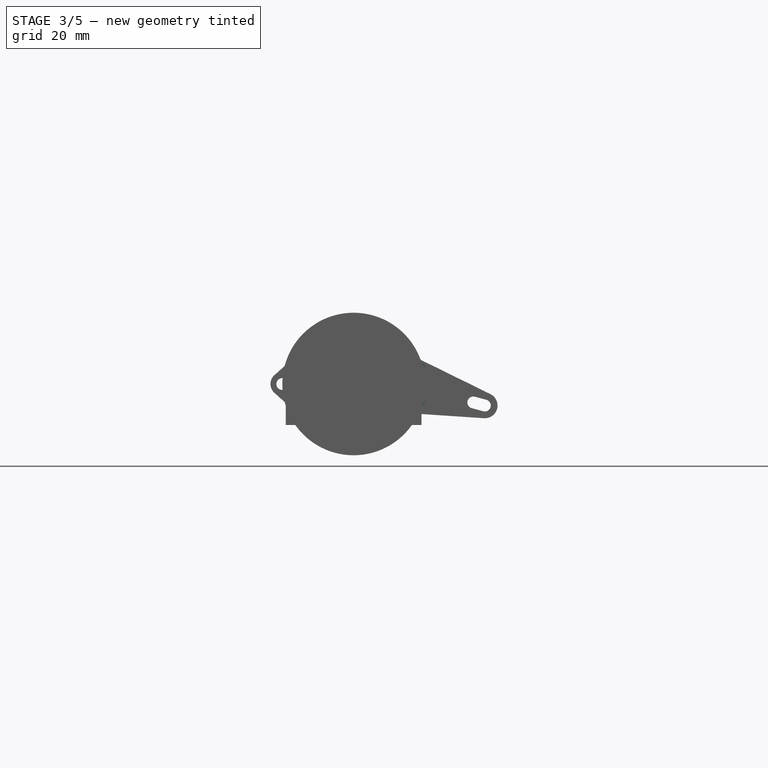
[diagram: stage 3 of 5 — front view after this stage's code; geometry added in this stage tinted green]
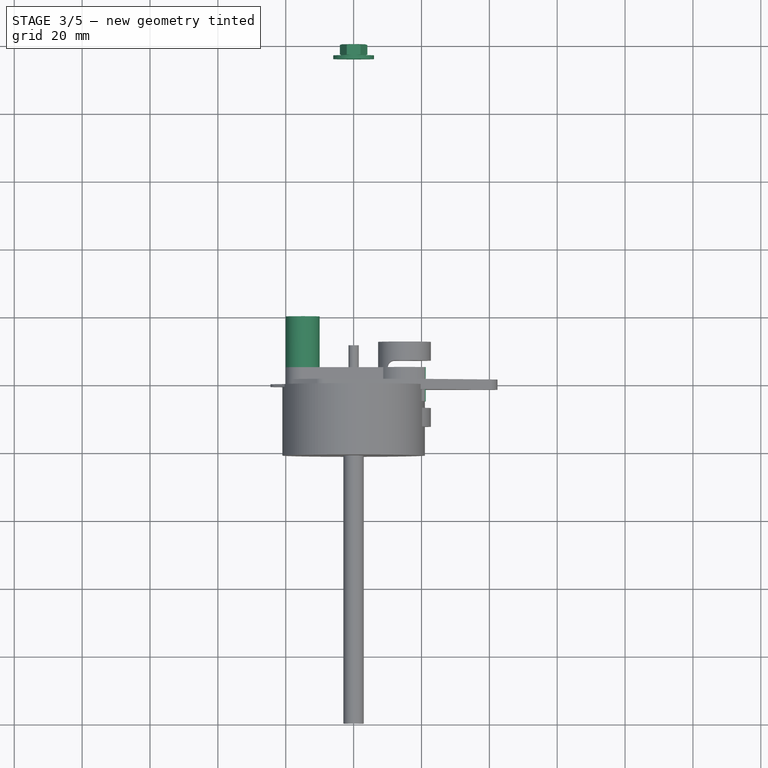
[diagram: stage 3 of 5 — top view after this stage's code; geometry added in this stage tinted green]
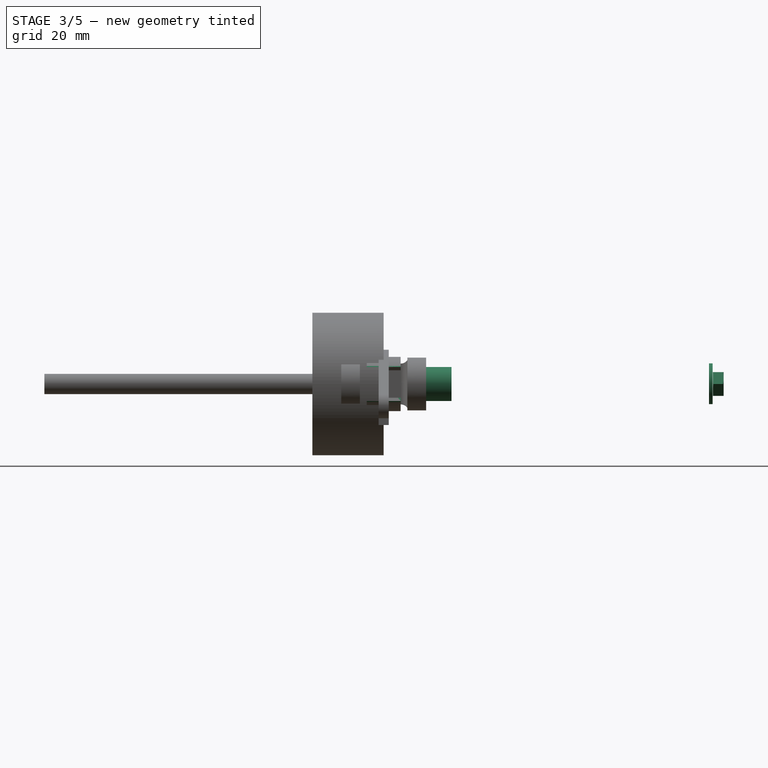
[diagram: stage 3 of 5 — right view after this stage's code; geometry added in this stage tinted green]
FEATURE [Part::FeaturePython] Washer  label="M4-Washer"  # Fasteners workbench fastener (typed FeaturePython)
  Placement = pos=(0,96.9563,0.0828193) rot=(1,0,0;1.5708rad)
  diameter = 3
  invert = false
  matchOuter = false
  offset = 0
  type = 3
FEATURE [Part::FeaturePython] Nut002  label="M4-Nut"  # Fasteners workbench fastener (typed FeaturePython)
  Placement = pos=(0,97,-2.2e-14) rot=(-1,0,0;1.5708rad)
  diameter = 6
  invert = false
  matchOuter = false
  offset = 0
  thread = false
  type = 4
FEATURE [App::Part] Part001  label="slide_left"
  Group = -> [Body015,ScrewTap001,Washer,Nut002]
  Origin = -> Origin004
  Placement = pos=(-15,0,0) rot=(0,0,1;0rad)
  expr: .Placement.Base.x = -<<params>>.Constraints.entraxe / 2
FEATURE [PartDesign::FeatureBase] Clone012
  BaseFeature = -> Nut
  Placement = pos=(0,0,0) rot=(1,0,0;1.5708rad)
FEATURE [PartDesign::Body] Body016
  BaseFeature = -> Nut
  Group = -> [Clone012]
  Origin = -> Origin022
  Placement = pos=(15,46.5,0) rot=(0,0,1;0rad)
  Tip = -> Clone012
FEATURE [Sketcher::SketchObject] Sketch008
  MapMode = 5
  Placement = pos=(0,0,0) rot=(1,0,0;1.5708rad)
  Support = -> [XZ_Plane023]
  expr: Constraints[1] = <<params>>.Constraints.entraxe
  sketch-geometry (20):
    g0: Circle CenterX=15 CenterY=-1e-15 CenterZ=0 NormalX=0 NormalY=0 NormalZ=1 AngleXU=0 Radius=3
    g1: Circle CenterX=-15 CenterY=1e-15 CenterZ=0 NormalX=0 NormalY=0 NormalZ=1 AngleXU=0 Radius=3.05
    g2: Circle CenterX=0 CenterY=0 CenterZ=0 NormalX=0 NormalY=0 NormalZ=1 AngleXU=0 Radius=1.5
    g3: ArcOfCircle CenterX=14 CenterY=-1.2e-15 CenterZ=0 NormalX=0 NormalY=0 NormalZ=1 AngleXU=0 Radius=3 StartAngle=1.5708 EndAngle=4.71239
    g4: ArcOfCircle CenterX=16 CenterY=-8e-16 CenterZ=0 NormalX=0 NormalY=0 NormalZ=1 AngleXU=0 Radius=3 StartAngle=4.71239 EndAngle=7.85398
    g5: LineSegment StartX=14 StartY=-3 StartZ=0 EndX=16 EndY=-3 EndZ=0
    g6: LineSegment StartX=14 StartY=3 StartZ=0 EndX=16 EndY=3 EndZ=0
    g7: LineSegment StartX=11.1132 StartY=-5 StartZ=0 EndX=16.8868 EndY=-5 EndZ=0
    g8: LineSegment StartX=16.8868 StartY=-5 StartZ=0 EndX=19.7735 EndY=-1.8e-15 EndZ=0
    g9: LineSegment StartX=19.7735 StartY=-1.8e-15 StartZ=0 EndX=16.8868 EndY=5 EndZ=0
    g10: LineSegment StartX=16.8868 StartY=5 StartZ=0 EndX=11.1132 EndY=5 EndZ=0
    g11: LineSegment StartX=11.1132 StartY=5 StartZ=0 EndX=8.2265 EndY=-1.8e-15 EndZ=0
    g12: LineSegment StartX=8.2265 StartY=-1.8e-15 StartZ=0 EndX=11.1132 EndY=-5 EndZ=0
    g13: Circle CenterX=14 CenterY=-1.2e-15 CenterZ=0 NormalX=0 NormalY=0 NormalZ=1 AngleXU=0 Radius=5.7735
    g14: LineSegment StartX=11.1132 StartY=5 StartZ=0 EndX=11.1132 EndY=7 EndZ=0
    g15: Circle CenterX=15 CenterY=-1e-15 CenterZ=0 NormalX=0 NormalY=0 NormalZ=1 AngleXU=0 Radius=8.00667
    g16: ArcOfCircle CenterX=-15 CenterY=1e-15 CenterZ=0 NormalX=0 NormalY=0 NormalZ=1 AngleXU=0 Radius=5 StartAngle=1.5708 EndAngle=4.71239
    g17: ArcOfCircle CenterX=15 CenterY=-1e-15 CenterZ=0 NormalX=0 NormalY=0 NormalZ=1 AngleXU=0 Radius=8.00667 StartAngle=3.81606 EndAngle=8.75031
    g18: LineSegment StartX=-15 StartY=5 StartZ=0 EndX=8.74645 EndY=5 EndZ=0
    g19: LineSegment StartX=-15 StartY=-5 StartZ=0 EndX=8.74645 EndY=-5 EndZ=0
  constraints (48):
    c: Symmetric(g1,g0,g-1)
    c: DistanceX(g1,g0) = 30
    c: Diameter(g1) = 6.1
    c: Diameter(g0) = 6
    c: Coincident(g2,g-1)
    c: Diameter(g2) = 3
    c: Tangent(g3,g6)
    c: Tangent(g3,g5)
    c: Tangent(g5,g4)
    c: Tangent(g6,g4)
    c: Horizontal(g5)
    c: Equal(g3,g4)
    c: Equal(g0,g4)
    c: Symmetric(g3,g4,g0)
    c: DistanceX(g3,g4) = 2
    c: Coincident(g7,g8)
    c: Coincident(g8,g9)
    c: Coincident(g9,g10)
    c: Coincident(g10,g11)
    c: Coincident(g11,g12)
    c: Coincident(g12,g7)
    c: Equal(g7, g8-g12) x5
    c: PointOnObject(g7,g13)
    c: PointOnObject(g8,g13)
    c: PointOnObject(g9,g13)
    c: PointOnObject(g10,g13)
    c: PointOnObject(g11,g13)
    c: PointOnObject(g12,g13)
    c: Coincident(g13,g3)
    c: Horizontal(g10)
    c: Coincident(g14,g10)
    c: Vertical(g14)
    c: DistanceY(g14,g14) = 2
    c: Coincident(g15,g0)
    c: PointOnObject(g14,g15)
    c: Coincident(g16,g1)
    c: Coincident(g17,g0)
    c: PointOnObject(g17,g15)
    c: Coincident(g18,g16)
    c: Horizontal(g18)
    c: Coincident(g19,g16)
    c: Coincident(g19,g17)
    c: Horizontal(g19)
    c: DistanceY(g7,g9) = 10
    c: Coincident(g17,g18)
    c: Symmetric(g16,g16,g-1)
    c: DistanceY(g16,g16) = 10
    c: Vertical(g1,g16)
FEATURE [PartDesign::Pad] Pad003
  Direction = (1,1,1)
  Length = 10
  Length2 = 100
  Midplane = true
  Placement = pos=(0,0,0) rot=(1,0,0;1.5708rad)
  Profile = -> Sketch008
  Type = 0
FEATURE [Sketcher::SketchObject] Sketch009
  ExternalGeometry = -> [Pad003]
  MapMode = 5
  Placement = pos=(0,0,0) rot=(1,0,0;1.5708rad)
  Support = -> [XZ_Plane023]
  sketch-geometry (2):
    g0: Circle CenterX=-15 CenterY=0 CenterZ=0 NormalX=0 NormalY=0 NormalZ=1 AngleXU=0 Radius=3.05
    g1: Circle CenterX=-15 CenterY=0 CenterZ=0 NormalX=0 NormalY=0 NormalZ=1 AngleXU=0 Radius=5
  constraints (4):
    c: PointOnObject(g0,g-1)
    c: Coincident(g1,g0)
    c: Equal(g-3,g1)
    c: Equal(g-4,g0)
FEATURE [PartDesign::Pad] Pad004
  BaseFeature = -> Pad003
  Direction = (1,1,1)
  Length = 40
  Length2 = 100
  Midplane = true
  Placement = pos=(0,0,0) rot=(1,0,0;1.5708rad)
  Profile = -> Sketch009
  Type = 0
FEATURE [Sketcher::SketchObject] Sketch010
  ExternalGeometry = -> [Pad004]
  MapMode = 5
  Placement = pos=(0,0,0) rot=(1,0,0;1.5708rad)
  Support = -> [XZ_Plane023]
  sketch-geometry (10):
    g0: LineSegment StartX=10.6132 StartY=-5 StartZ=0 EndX=16.3868 EndY=-5 EndZ=0
    g1: LineSegment StartX=16.3868 StartY=-5 StartZ=0 EndX=19.2735 EndY=0 EndZ=0
    g2: LineSegment StartX=19.2735 StartY=0 StartZ=0 EndX=16.3868 EndY=5 EndZ=0
    g3: LineSegment StartX=16.3868 StartY=5 StartZ=0 EndX=10.6132 EndY=5 EndZ=0
    g4: LineSegment StartX=10.6132 StartY=5 StartZ=0 EndX=7.7265 EndY=0 EndZ=0
    g5: LineSegment StartX=7.7265 StartY=0 StartZ=0 EndX=10.6132 EndY=-5 EndZ=0
    g6: Circle CenterX=13.5 CenterY=0 CenterZ=0 NormalX=0 NormalY=0 NormalZ=1 AngleXU=0 Radius=5.7735
    g7: LineSegment StartX=10.6132 StartY=-5 StartZ=0 EndX=26.305 EndY=-5 EndZ=0
    g8: LineSegment StartX=10.6132 StartY=5 StartZ=0 EndX=26.305 EndY=5 EndZ=0
    g9: LineSegment StartX=26.305 StartY=5 StartZ=0 EndX=26.305 EndY=-5 EndZ=0
  constraints (24):
    c: Coincident(g0,g1)
    c: Coincident(g1,g2)
    c: Coincident(g2,g3)
    c: Coincident(g3,g4)
    c: Coincident(g4,g5)
    c: Coincident(g5,g0)
    c: Equal(g0, g1-g5) x5
    c: PointOnObject(g0,g6)
    c: PointOnObject(g1,g6)
    c: PointOnObject(g2,g6)
    c: PointOnObject(g3,g6)
    c: PointOnObject(g4,g6)
    c: PointOnObject(g5,g6)
    c: PointOnObject(g6,g-1)
    c: Horizontal(g3)
    c: DistanceY(g0,g3) = 10
    c: DistanceX(g6,g-3) = 1.5
    c: Coincident(g7,g5)
    c: Horizontal(g7)
    c: Coincident(g8,g4)
    c: Horizontal(g8)
    c: Coincident(g9,g8)
    c: Coincident(g9,g7)
    c: Vertical(g9)
FEATURE [PartDesign::FeatureBase] Clone013
  BaseFeature = -> Nut
  Placement = pos=(0,0,0) rot=(1,0,0;1.5708rad)
FEATURE [PartDesign::Body] Body018
  BaseFeature = -> Nut
  Group = -> [Clone013]
  Origin = -> Origin024
  Placement = pos=(15,39.5,0) rot=(0,0,1;0rad)
  Tip = -> Clone013
FEATURE [Sketcher::SketchObject] Sketch011
  MapMode = 5
  Placement = pos=(0,0,0) rot=(1,0,0;1.5708rad)
  Support = -> [XZ_Plane023]
  sketch-geometry (1):
    g0: Circle CenterX=0 CenterY=0 CenterZ=0 NormalX=0 NormalY=0 NormalZ=1 AngleXU=0 Radius=3
  constraints (2):
    c: Coincident(g0,g-1)
    c: Diameter(g0) = 6
FEATURE [PartDesign::Pocket] Pocket004
  BaseFeature = -> Pad004
  Length = 10
  Length2 = 100
  Placement = pos=(0,0,0) rot=(1,0,0;1.5708rad)
  Profile = -> Sketch011
  Type = 0
FEATURE [PartDesign::Pocket] Pocket003
  BaseFeature = -> Pocket004
  Length = 6
  Length2 = -1
  Placement = pos=(0,0,0) rot=(1,0,0;1.5708rad)
  Profile = -> Sketch010
  Type = 4
FEATURE [PartDesign::Mirrored] Mirrored
  BaseFeature = -> Pocket003
  MirrorPlane = -> XZ_Plane023
  Originals = -> [Pocket003]
  Placement = pos=(0,0,0) rot=(1,0,0;1.5708rad)
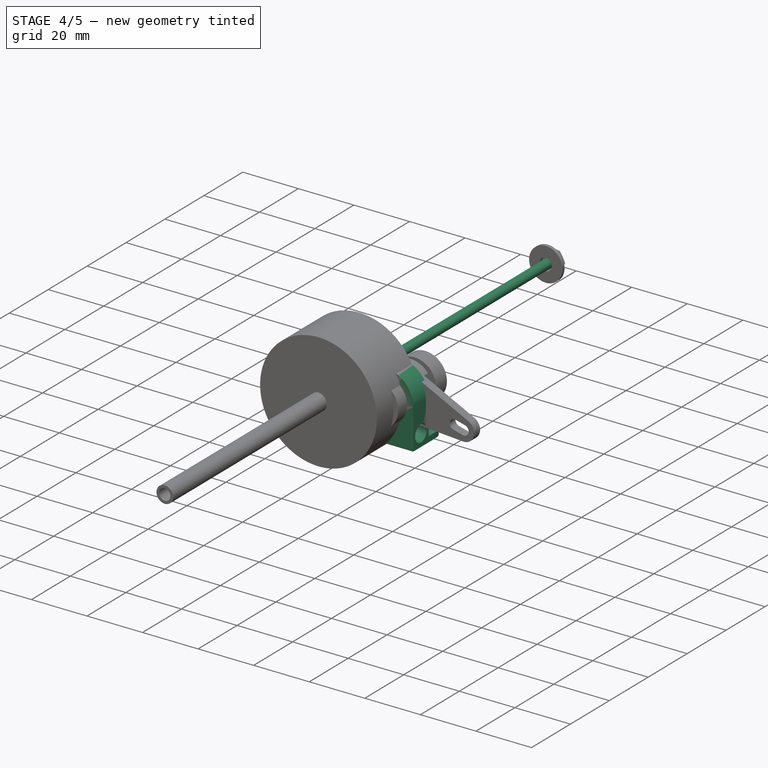
[diagram: stage 4 of 5 — iso view after this stage's code; geometry added in this stage tinted green]
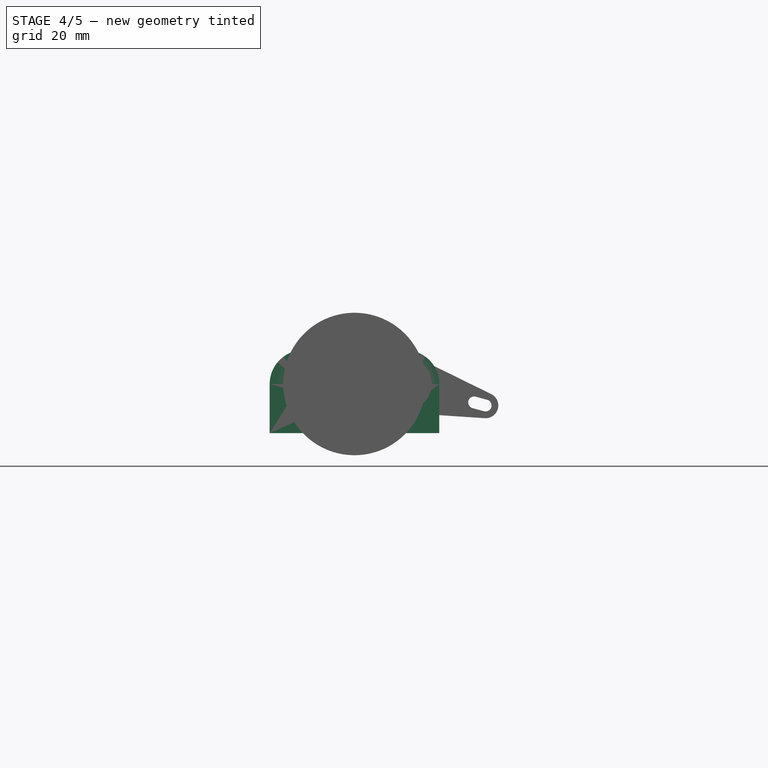
[diagram: stage 4 of 5 — front view after this stage's code; geometry added in this stage tinted green]
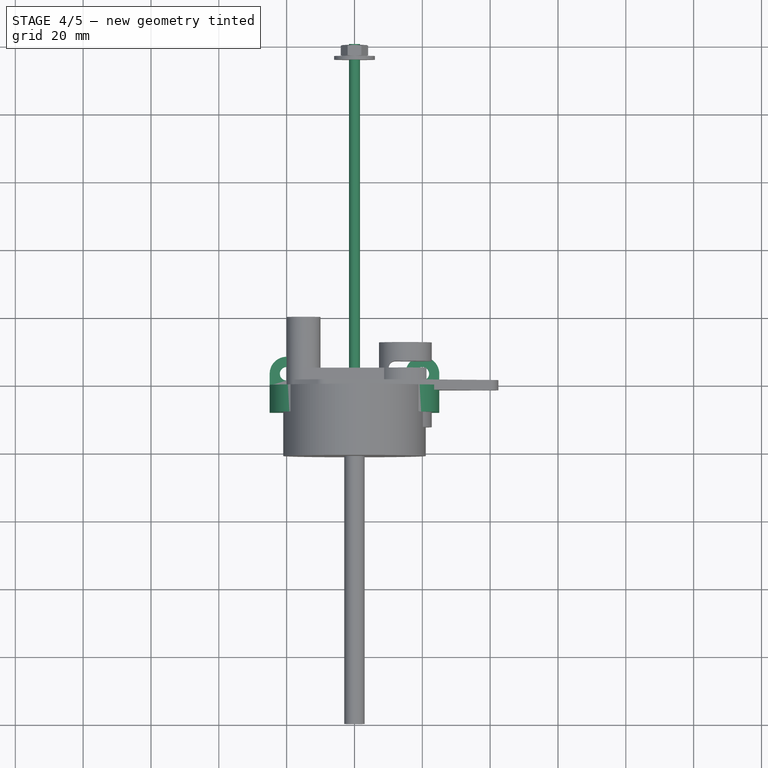
[diagram: stage 4 of 5 — top view after this stage's code; geometry added in this stage tinted green]
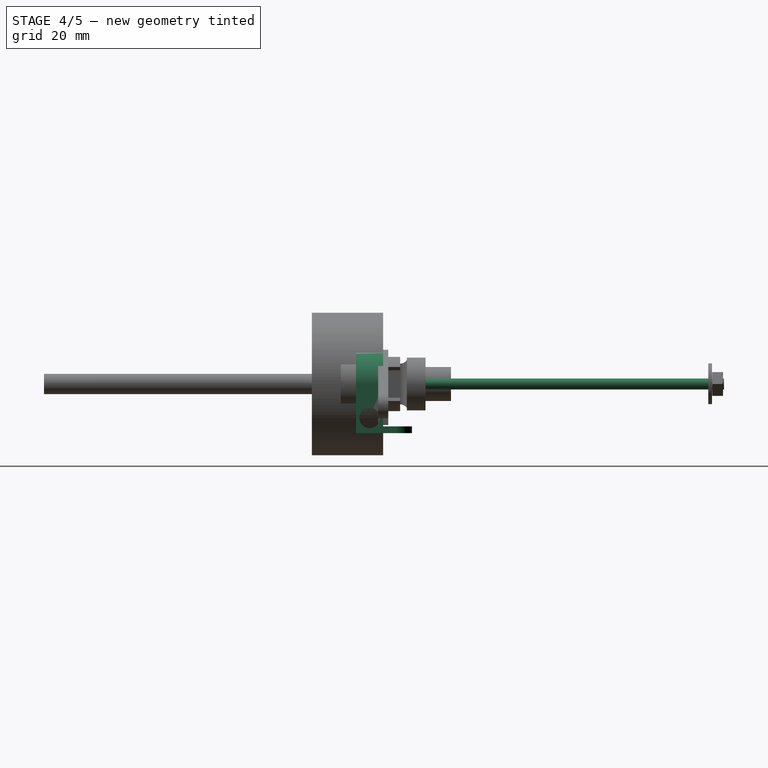
[diagram: stage 4 of 5 — right view after this stage's code; geometry added in this stage tinted green]
FEATURE [PartDesign::Body] Body009
  BaseFeature = -> Nut
  Group = -> [Clone008]
  Origin = -> Origin014
  Placement = pos=(0,90,0) rot=(0,0,1;0rad)
  Tip = -> Clone008
  expr: .Placement.Base.y = <<params>>.Constraints.length - 10mm
FEATURE [App::Part] Part002  label="screw_tap_right"
  Group = -> [Body002,Body004,Body005,Body006,Body009]
  Origin = -> Origin005
  Placement = pos=(15,0,0) rot=(0,0,1;0rad)
  expr: .Placement.Base.x = <<params>>.Constraints.entraxe / 2
FEATURE [Sketcher::SketchObject] Sketch002
  MapMode = 5
  Placement = pos=(0,0,0) rot=(1,0,0;1.5708rad)
  Support = -> [XZ_Plane016]
  expr: Constraints[0] = <<sk_ballb>>.Constraints.ext_radius * 2
  sketch-geometry (22):
    g0: Circle CenterX=-15 CenterY=0 CenterZ=0 NormalX=0 NormalY=0 NormalZ=1 AngleXU=0 Radius=2
    g1: Circle CenterX=15 CenterY=4.08913e-06 CenterZ=0 NormalX=0 NormalY=0 NormalZ=1 AngleXU=0 Radius=6.5
    g2: Circle CenterX=-15 CenterY=-2.2498e-06 CenterZ=0 NormalX=0 NormalY=0 NormalZ=1 AngleXU=0 Radius=10
    g3: Circle CenterX=15 CenterY=4.08913e-06 CenterZ=0 NormalX=0 NormalY=0 NormalZ=1 AngleXU=0 Radius=10
    g4: LineSegment StartX=-6.33975 StartY=5 StartZ=0 EndX=6.33975 EndY=5 EndZ=0
    g5: LineSegment StartX=-6.33975 StartY=-5 StartZ=0 EndX=6.33975 EndY=-5 EndZ=0
    g6: LineSegment StartX=-25 StartY=1.2e-15 StartZ=0 EndX=-25 EndY=-14.5 EndZ=0
    g7: LineSegment StartX=-25 StartY=-14.5 StartZ=0 EndX=-15 EndY=-14.5 EndZ=0
    g8: LineSegment StartX=15 StartY=-10 StartZ=0 EndX=15 EndY=-14.5 EndZ=0
    g9: LineSegment StartX=15 StartY=-14.5 StartZ=0 EndX=25 EndY=-14.5 EndZ=0
    g10: LineSegment StartX=25 StartY=-14.5 StartZ=0 EndX=25 EndY=1.8e-15 EndZ=0
    g11: ArcOfCircle CenterX=-15 CenterY=0 CenterZ=0 NormalX=0 NormalY=0 NormalZ=1 AngleXU=0 Radius=10 StartAngle=0.523599 EndAngle=3.14159
    g12: ArcOfCircle CenterX=15 CenterY=4.08913e-06 CenterZ=0 NormalX=0 NormalY=0 NormalZ=1 AngleXU=0 Radius=10 StartAngle=6.28318 EndAngle=8.90118
    g13: ArcOfCircle CenterX=15 CenterY=4.08913e-06 CenterZ=0 NormalX=0 NormalY=0 NormalZ=1 AngleXU=0 Radius=10 StartAngle=3.66519 EndAngle=4.71239
    g14: ArcOfCircle CenterX=-15 CenterY=0 CenterZ=0 NormalX=0 NormalY=0 NormalZ=1 AngleXU=0 Radius=10 StartAngle=4.71239 EndAngle=5.75959
    g15: LineSegment StartX=-15 StartY=-10 StartZ=0 EndX=-15 EndY=-14.5 EndZ=0
    g16: Circle CenterX=0 CenterY=0 CenterZ=0 NormalX=0 NormalY=0 NormalZ=1 AngleXU=0 Radius=3
    g17: LineSegment StartX=-5 StartY=0 StartZ=0 EndX=-3 EndY=0 EndZ=0
    g18: LineSegment StartX=0 StartY=-3 StartZ=0 EndX=0 EndY=-5 EndZ=0
    g19: LineSegment StartX=0 StartY=5 StartZ=0 EndX=0 EndY=3 EndZ=0
    g20: LineSegment StartX=15 StartY=10 StartZ=0 EndX=15 EndY=6.5 EndZ=0
    g21: LineSegment StartX=15 StartY=-6.5 StartZ=0 EndX=15 EndY=-10 EndZ=0
  constraints (58):
    c: Diameter(g1) = 13
    c: Coincident(g3,g1)
    c: Equal(g3,g2)
    c: PointOnObject(g4,g2)
    c: PointOnObject(g4,g3)
    c: Horizontal(g4)
    c: PointOnObject(g5,g2)
    c: PointOnObject(g5,g3)
    c: Horizontal(g5)
    c: Vertical(g6)
    c: Coincident(g7,g6)
    c: Vertical(g8)
    c: Coincident(g9,g8)
    c: Horizontal(g9)
    c: Coincident(g10,g9)
    c: Vertical(g10)
    c: Horizontal(g7)
    c: PointOnObject(g6,g-1)
    c: PointOnObject(g10,g-1)
    c: Horizontal(g7,g8)
    c: Coincident(g11,g6)
    c: Coincident(g11,g4)
    c: Coincident(g12,g1)
    c: Coincident(g12,g4)
    c: Coincident(g12,g10)
    c: Coincident(g13,g1)
    c: Coincident(g13,g8)
    c: Coincident(g13,g5)
    c: Coincident(g14,g5)
    c: Coincident(g15,g14)
    c: Coincident(g15,g7)
    c: Vertical(g8,g1)
    c: Coincident(g16,g-1)
    c: Diameter(g16) = 6
    c: PointOnObject(g17,g2)
    c: PointOnObject(g17,g16)
    c: PointOnObject(g18,g16)
    c: PointOnObject(g18,g5)
    c: Vertical(g18)
    c: Horizontal(g17)
    c: PointOnObject(g17,g-1)
    c: PointOnObject(g18,g-2)
    c: Equal(g17,g18)
    c: PointOnObject(g19,g4)
    c: PointOnObject(g19,g16)
    c: Vertical(g19)
    c: PointOnObject(g19,g-2)
    c: Equal(g17,g19)
    c: PointOnObject(g20,g12)
    c: PointOnObject(g20,g1)
    c: Vertical(g20)
    c: PointOnObject(g21,g1)
    c: Coincident(g21,g8)
    c: Vertical(g21)
    c: PointOnObject(g1,g20)
    c: DistanceY(g20,g20) = 3.5
    c: DistanceY(g8,g21) = 8
    c: Diameter(g0) = 4
FEATURE [PartDesign::Pad] Pad
  Direction = (1,1,1)
  Length = 8
  Length2 = 100
  Placement = pos=(0,0,0) rot=(1,0,0;1.5708rad)
  Profile = -> Sketch002
  Type = 0
FEATURE [Sketcher::SketchObject] Sketch003
  ExternalGeometry = -> [Pad]
  MapMode = 5
  Placement = pos=(0,0,0) rot=(-1,0,0;1.5708rad)
  Support = -> [Pad]
  expr: Constraints[1] = <<sk_ballb>>.Constraints.ext_radius2 + 0.2mm
  sketch-geometry (1):
    g0: Circle CenterX=15 CenterY=-4.08913e-06 CenterZ=0 NormalX=0 NormalY=0 NormalZ=1 AngleXU=0 Radius=7.7
  constraints (2):
    c: Coincident(g0,g-4)
    c: Radius(g0) = 7.7
FEATURE [PartDesign::Pocket] Pocket
  BaseFeature = -> Pad
  Length = 2
  Length2 = 100
  Placement = pos=(0,0,0) rot=(1,0,0;1.5708rad)
  Profile = -> Sketch003
  Type = 0
FEATURE [Sketcher::SketchObject] Sketch004
  ExternalGeometry = -> [Pocket]
  MapMode = 5
  Placement = pos=(0,0,0) rot=(0.57735,0.57735,0.57735;2.0944rad)
  Support = -> [YZ_Plane016]
  sketch-geometry (1):
    g0: Circle CenterX=-4 CenterY=-10 CenterZ=0 NormalX=0 NormalY=0 NormalZ=1 AngleXU=0 Radius=3
  constraints (2):
    c: Diameter(g0) = 6
    c: Symmetric(g-4,g-3,g0)
FEATURE [PartDesign::Pocket] Pocket001
  BaseFeature = -> Pocket
  Length = 62
  Length2 = 100
  Midplane = true
  Placement = pos=(0,0,0) rot=(1,0,0;1.5708rad)
  Profile = -> Sketch004
  Type = 0
FEATURE [PartDesign::Body] Body012  label="bd_rear_transverse_rod"
  BaseFeature = -> ScrewTap
  Group = -> [Clone010]
  Origin = -> Origin017
  Placement = pos=(48,-4,-10) rot=(0,0,1;1.5708rad)
  Tip = -> Clone010
FEATURE [Sketcher::SketchObject] Sketch005
  AttachmentOffset = pos=(0,0,-14.5) rot=(0,0,1;0rad)
  ExternalGeometry = -> [Pocket001]
  MapMode = 5
  Placement = pos=(0,0,-14.5) rot=(0,0,1;0rad)
  Support = -> [XY_Plane016]
  sketch-geometry (13):
    g0: Circle CenterX=-20 CenterY=3.5 CenterZ=0 NormalX=0 NormalY=0 NormalZ=1 AngleXU=0 Radius=3.5
    g1: Circle CenterX=20 CenterY=3.5 CenterZ=0 NormalX=0 NormalY=0 NormalZ=1 AngleXU=0 Radius=3.5
    g2: Circle CenterX=-20 CenterY=3.5 CenterZ=0 NormalX=0 NormalY=0 NormalZ=1 AngleXU=0 Radius=2
    g3: Circle CenterX=20 CenterY=3.5 CenterZ=0 NormalX=0 NormalY=0 NormalZ=1 AngleXU=0 Radius=2
    g4: LineSegment StartX=-25 StartY=0 StartZ=0 EndX=-15 EndY=0 EndZ=0
    g5: LineSegment StartX=15 StartY=0 StartZ=0 EndX=25 EndY=3.2e-15 EndZ=0
    g6: LineSegment StartX=15 StartY=0 StartZ=0 EndX=15 EndY=3.5 EndZ=0
    g7: LineSegment StartX=25 StartY=3.2e-15 StartZ=0 EndX=25 EndY=3.5 EndZ=0
    g8: LineSegment StartX=-15 StartY=0 StartZ=0 EndX=-15 EndY=3.5 EndZ=0
    g9: LineSegment StartX=-25 StartY=0 StartZ=0 EndX=-25 EndY=3.5 EndZ=0
    g10: ArcOfCircle CenterX=-20 CenterY=3.5 CenterZ=0 NormalX=0 NormalY=0 NormalZ=1 AngleXU=0 Radius=5 StartAngle=0 EndAngle=3.14159
    g11: ArcOfCircle CenterX=20 CenterY=3.5 CenterZ=0 NormalX=0 NormalY=0 NormalZ=1 AngleXU=0 Radius=5 StartAngle=0 EndAngle=3.14159
    g12: LineSegment StartX=20 StartY=3.5 StartZ=0 EndX=20 EndY=3.1e-15 EndZ=0
  constraints (30):
    c: Diameter(g0) = 7
    c: Tangent(g0,g-1)
    c: Equal(g1,g0)
    c: Symmetric(g0,g1,g-2)
    c: Coincident(g2,g0)
    c: Coincident(g3,g1)
    c: Equal(g2,g3)
    c: Diameter(g2) = 4
    c: PointOnObject(g4,g-1)
    c: PointOnObject(g4,g-1)
    c: PointOnObject(g5,g-1)
    c: Coincident(g6,g5)
    c: Vertical(g6)
    c: Coincident(g7,g5)
    c: Vertical(g7)
    c: Coincident(g8,g4)
    c: Vertical(g8)
    c: Coincident(g9,g4)
    c: Vertical(g9)
    c: Coincident(g10,g2)
    c: Coincident(g11,g3)
    c: Equal(g10,g11)
    c: Tangent(g10,g8) = -1.5708
    c: Tangent(g10,g9) = 1.5708
    c: Tangent(g11,g6) = 1.5708
    c: Tangent(g11,g7) = -1.5708
    c: Coincident(g12,g3)
    c: Vertical(g12)
    c: Symmetric(g-3,g-3,g12)
    c: Coincident(g5,g-3)
FEATURE [PartDesign::Pad] Pad001
  BaseFeature = -> Pocket001
  Direction = (1,1,1)
  Length = 2
  Length2 = 100
  Placement = pos=(0,0,0) rot=(1,0,0;1.5708rad)
  Profile = -> Sketch005
  Type = 0
FEATURE [PartDesign::Body] Body013  label="pipe_6"
  Group = -> [Sketch006,Pad002]
  Origin = -> Origin018
  Tip = -> Pad002
FEATURE [PartDesign::FeatureBase] Clone011
  BaseFeature = -> Body013
FEATURE [PartDesign::Body] Body014
  BaseFeature = -> Body013
  Group = -> [Clone011]
  Origin = -> Origin020
  Placement = pos=(0,144.5,0) rot=(0,0,1;0rad)
  Tip = -> Clone011
FEATURE [PartDesign::FeatureBase] Clone
  BaseFeature = -> Body013
FEATURE [PartDesign::Body] Body015
  BaseFeature = -> Body013
  Group = -> [Clone]
  Origin = -> Origin021
  Placement = pos=(0,94,0) rot=(0,0,1;0rad)
  Tip = -> Clone
FEATURE [Sketcher::SketchObject] Sketch007
  AttachmentOffset = pos=(0,0,2) rot=(0,0,1;0rad)
  ExternalGeometry = -> [Pad001]
  MapMode = 5
  Placement = pos=(0,-2,-4e-16) rot=(1,0,0;1.5708rad)
  Support = -> [XZ_Plane016]
  sketch-geometry (1):
    g0: Circle CenterX=-15 CenterY=0 CenterZ=0 NormalX=0 NormalY=0 NormalZ=1 AngleXU=0 Radius=3
  constraints (2):
    c: Coincident(g0,g-3)
    c: Diameter(g0) = 6
FEATURE [PartDesign::Pocket] Pocket002
  BaseFeature = -> Pad001
  Length = 11
  Length2 = 100
  Placement = pos=(0,0,0) rot=(1,0,0;1.5708rad)
  Profile = -> Sketch007
  Reversed = true
  Type = 0
FEATURE [PartDesign::Body] Body011  label="bd_bb_bracket"
  Group = -> [Sketch002,Pad,Sketch003,Pocket,Sketch004,Pocket001,Sketch005,Pad001,Sketch007,Pocket002]
  Origin = -> Origin016
  Tip = -> Pocket002
FEATURE [App::Part] Part  label="free_bb_bracket"
  Group = -> [Body011,Body012]
  Origin = -> Origin
  Placement = pos=(0,96,0) rot=(0,0,1;0rad)
  expr: .Placement.Base.y = <<params>>.Constraints.length - 4mm
FEATURE [Part::FeaturePython] ScrewTap001  label="M4x110.0-ScrewTap"  # Fasteners workbench fastener (typed FeaturePython)
  Placement = pos=(0,-9.5,-2e-15) rot=(1,0,0;1.5708rad)
  diameter = 6
  invert = false
  length = 110
  matchOuter = false
  offset = 0
  thread = false
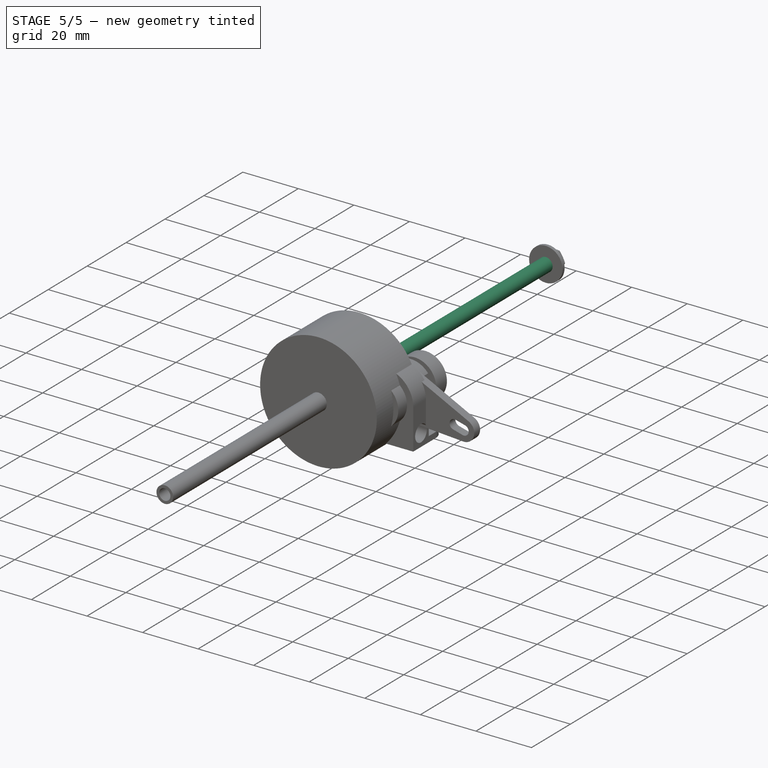
[diagram: stage 5 of 5 — iso view after this stage's code; geometry added in this stage tinted green]
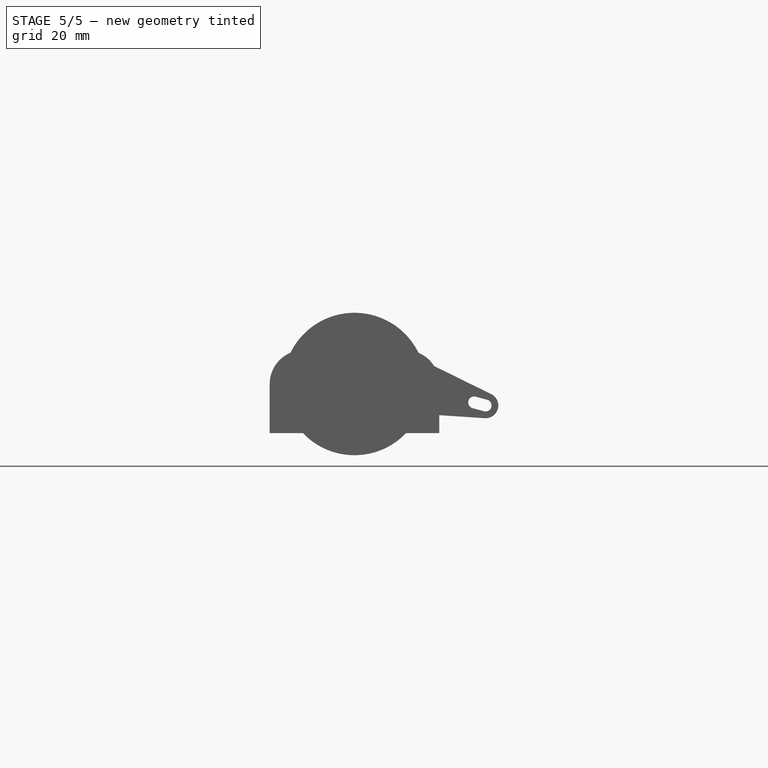
[diagram: stage 5 of 5 — front view after this stage's code; geometry added in this stage tinted green]
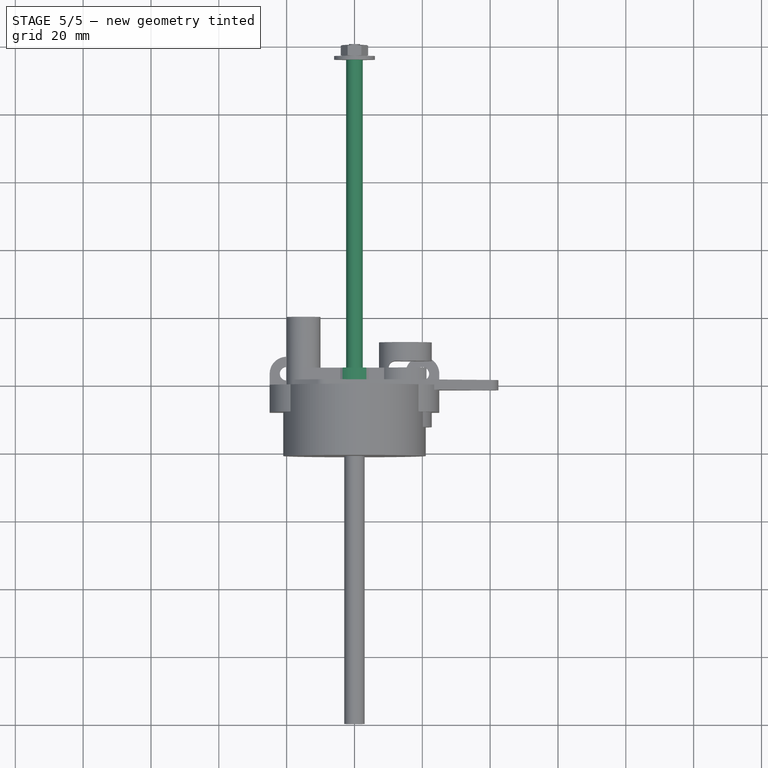
[diagram: stage 5 of 5 — top view after this stage's code; geometry added in this stage tinted green]
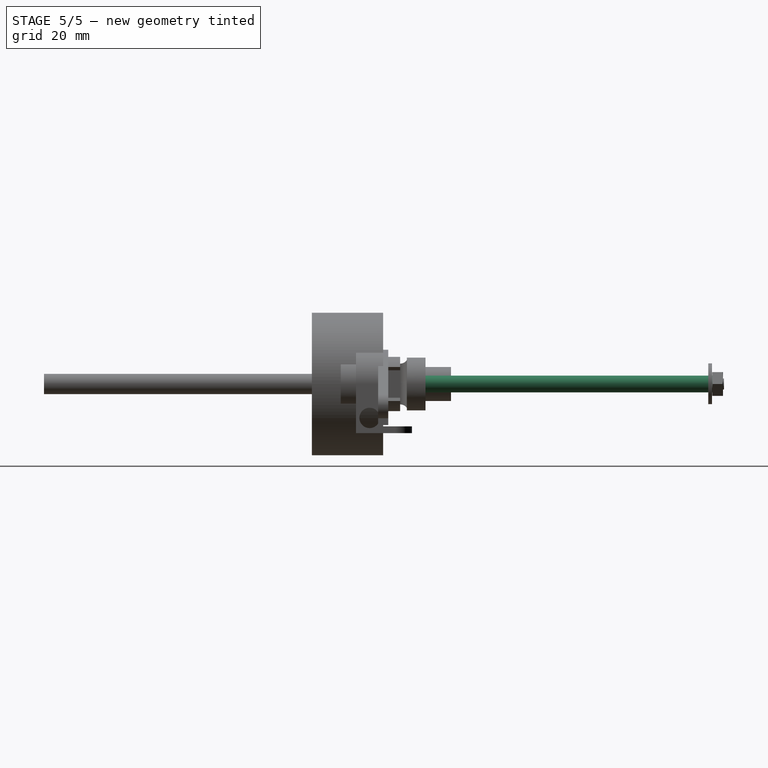
[diagram: stage 5 of 5 — right view after this stage's code; geometry added in this stage tinted green]
FEATURE [Part::FeaturePython] ScrewTap  label="M6x100.0-ScrewTap"  # Fasteners workbench fastener (typed FeaturePython)
  Placement = pos=(0,0,0) rot=(1,0,0;1.5708rad)
  diameter = 8
  invert = false
  length = 100
  matchOuter = false
  offset = 0
  thread = false
  expr: length = <<params>>.Constraints.length
FEATURE [Sketcher::SketchObject] Sketch  label="params"
  Placement = pos=(0,0,0) rot=(1,0,0;1.5708rad)
  sketch-geometry (9):
    g0: Circle CenterX=-15 CenterY=0 CenterZ=0 NormalX=0 NormalY=0 NormalZ=1 AngleXU=0 Radius=3
    g1: Circle CenterX=15 CenterY=0 CenterZ=0 NormalX=0 NormalY=0 NormalZ=1 AngleXU=0 Radius=3
    g2: Circle CenterX=-15 CenterY=0 CenterZ=0 NormalX=0 NormalY=0 NormalZ=1 AngleXU=0 Radius=10
    g3: Circle CenterX=15 CenterY=0 CenterZ=0 NormalX=0 NormalY=0 NormalZ=1 AngleXU=0 Radius=10
    g4: Circle CenterX=0 CenterY=13.2288 CenterZ=0 NormalX=0 NormalY=0 NormalZ=1 AngleXU=0 Radius=10
    g5: LineSegment StartX=42.8285 StartY=3 StartZ=0 EndX=142.828 EndY=3 EndZ=0
    g6: LineSegment StartX=142.828 StartY=3 StartZ=0 EndX=142.828 EndY=-3 EndZ=0
    g7: LineSegment StartX=142.828 StartY=-3 StartZ=0 EndX=42.8285 EndY=-3 EndZ=0
    g8: LineSegment StartX=42.8285 StartY=-3 StartZ=0 EndX=42.8285 EndY=3 EndZ=0
  constraints (23):
    c: PointOnObject(g0,g-1)
    c: Symmetric(g0,g1,g-2)
    c: Equal(g0,g1)
    c: Diameter(g1) = 6
    c: DistanceX(g0,g1) = 30  'entraxe'
    c: Coincident(g2,g0)
    c: Coincident(g3,g1)
    c: PointOnObject(g4,g-2)
    c: Equal(g4,g2)
    c: Equal(g2,g3)
    c: Tangent(g2,g4)
    c: Diameter(g3) = 20
    c: Coincident(g5,g6)
    c: Coincident(g6,g7)
    c: Coincident(g7,g8)
    c: Coincident(g8,g5)
    c: Horizontal(g5)
    c: Horizontal(g7)
    c: Vertical(g6)
    c: Vertical(g8)
    c: Tangent(g5,g1)
    c: Tangent(g7,g1)
    c: DistanceX(g7,g7) = 100  'length'
FEATURE [Sketcher::SketchObject] Sketch001  label="sk_ballb"
  MapMode = 5
  Support = -> [XY_Plane001]
  sketch-geometry (6):
    g0: LineSegment StartX=-3 StartY=0 StartZ=0 EndX=-7.5 EndY=0 EndZ=0
    g1: LineSegment StartX=-7.5 StartY=0 StartZ=0 EndX=-7.5 EndY=1.09 EndZ=0
    g2: LineSegment StartX=-7.5 StartY=1.09 StartZ=0 EndX=-6.5 EndY=1.09 EndZ=0
    g3: LineSegment StartX=-6.5 StartY=1.09 StartZ=0 EndX=-6.5 EndY=5 EndZ=0
    g4: LineSegment StartX=-6.5 StartY=5 StartZ=0 EndX=-3 EndY=5 EndZ=0
    g5: LineSegment StartX=-3 StartY=5 StartZ=0 EndX=-3 EndY=0 EndZ=0
  constraints (18):
    c: PointOnObject(g0,g-1)
    c: PointOnObject(g0,g-1)
    c: Coincident(g1,g0)
    c: Vertical(g1)
    c: Coincident(g2,g1)
    c: Horizontal(g2)
    c: Coincident(g3,g2)
    c: Vertical(g3)
    c: Coincident(g4,g3)
    c: Horizontal(g4)
    c: Coincident(g5,g4)
    c: Coincident(g5,g0)
    c: Vertical(g5)
    c: DistanceX(g0,g-1) = 3
    c: DistanceX(g2,g-1) = 6.5  'ext_radius'
    c: DistanceX(g0,g-1) = 7.5  'ext_radius2'
    c: DistanceY(g-1,g4) = 5  'ext_thick'
    c: DistanceY(g1,g1) = 1.09  'ext_thick2'
FEATURE [PartDesign::Revolution] Revolution
  Angle = 360
  Axis = (0,1,0)
  Base = (0,0,0)
  Profile = -> Sketch001
  ReferenceAxis = -> Sketch001 [V_Axis]
FEATURE [PartDesign::Body] Body  label="bd_ball_bearing_6x13"
  Group = -> [Sketch001,Revolution]
  Origin = -> Origin001
  Tip = -> Revolution
FEATURE [PartDesign::FeatureBase] Clone001
  BaseFeature = -> Body
FEATURE [PartDesign::Body] Body002
  BaseFeature = -> Body
  Group = -> [Clone001]
  Origin = -> Origin003
  Tip = -> Clone001
FEATURE [PartDesign::FeatureBase] Clone003
  BaseFeature = -> Body
FEATURE [PartDesign::Body] Body004
  BaseFeature = -> Body
  Group = -> [Clone003]
  Origin = -> Origin007
  Placement = pos=(0,95,0) rot=(0,0,1;3.14159rad)
  Tip = -> Clone003
  expr: .Placement.Base.y = <<params>>.Constraints.length - 5mm
FEATURE [PartDesign::FeatureBase] Clone004
  BaseFeature = -> Nut
  Placement = pos=(0,0,0) rot=(1,0,0;1.5708rad)
FEATURE [PartDesign::Body] Body005
  BaseFeature = -> Nut
  Group = -> [Clone004]
  Origin = -> Origin010
  Placement = pos=(0,100,0) rot=(0,0,1;0rad)
  Tip = -> Clone004
  expr: .Placement.Base.y = <<params>>.Constraints.length
FEATURE [PartDesign::FeatureBase] Clone005
  BaseFeature = -> ScrewTap
  Placement = pos=(0,0,0) rot=(1,0,0;1.5708rad)
FEATURE [PartDesign::Body] Body006
  BaseFeature = -> ScrewTap
  Group = -> [Clone005]
  Origin = -> Origin011
  Tip = -> Clone005
FEATURE [PartDesign::FeatureBase] Clone008
  BaseFeature = -> Nut
  Placement = pos=(0,0,0) rot=(1,0,0;1.5708rad)
FEATURE [PartDesign::FeatureBase] Clone010
  BaseFeature = -> ScrewTap
  Placement = pos=(0,0,0) rot=(1,0,0;1.5708rad)
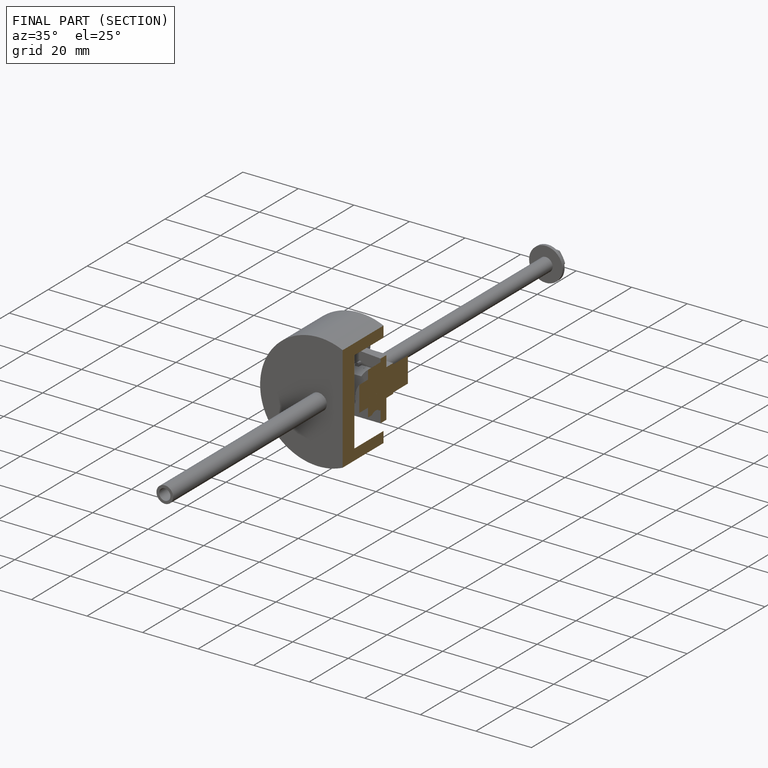
[diagram: finished part — half-section view (interior)]
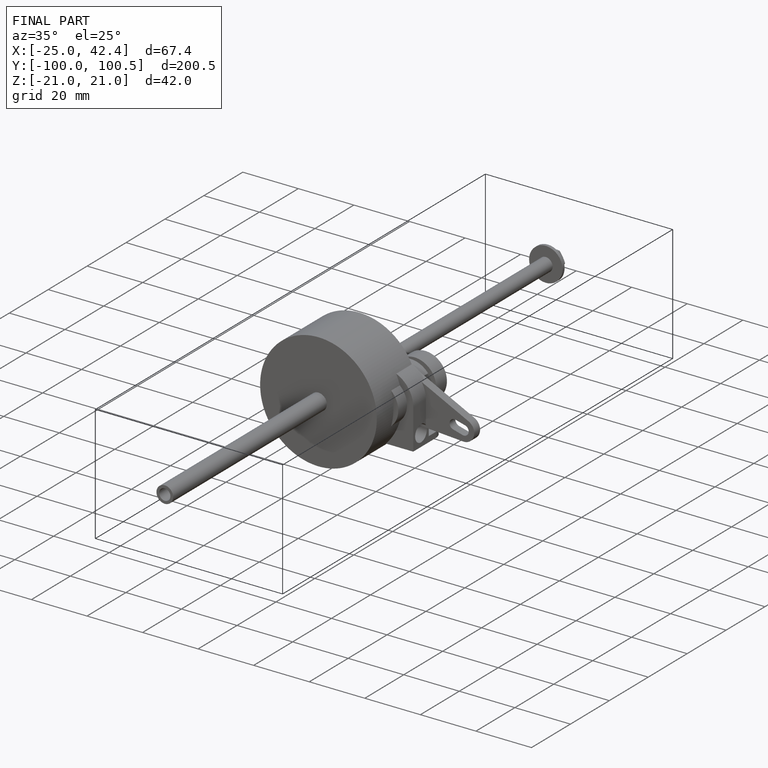
[diagram: finished part — iso view with bounding-box wireframe]
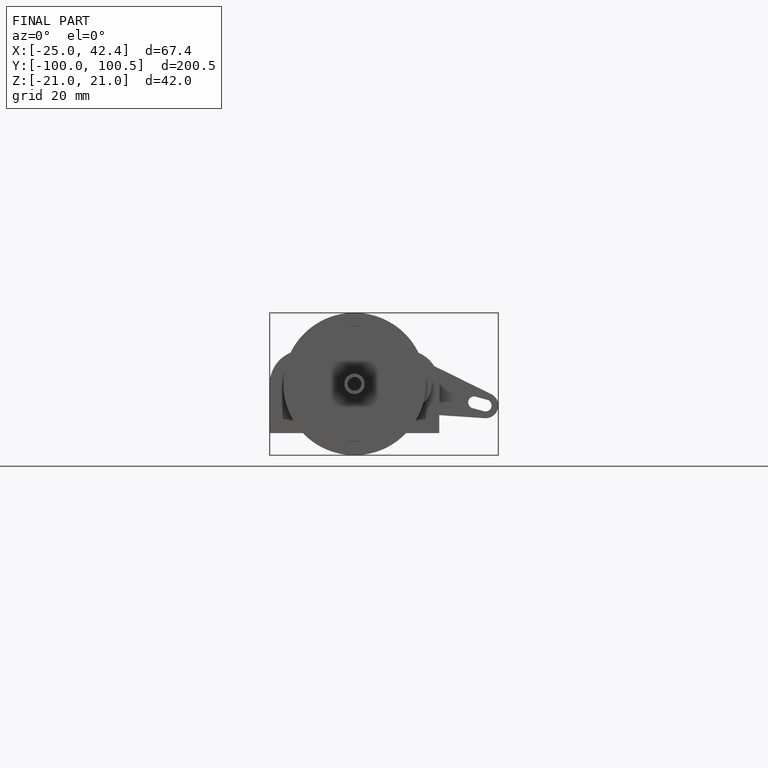
[diagram: finished part — front view with bounding-box wireframe]
